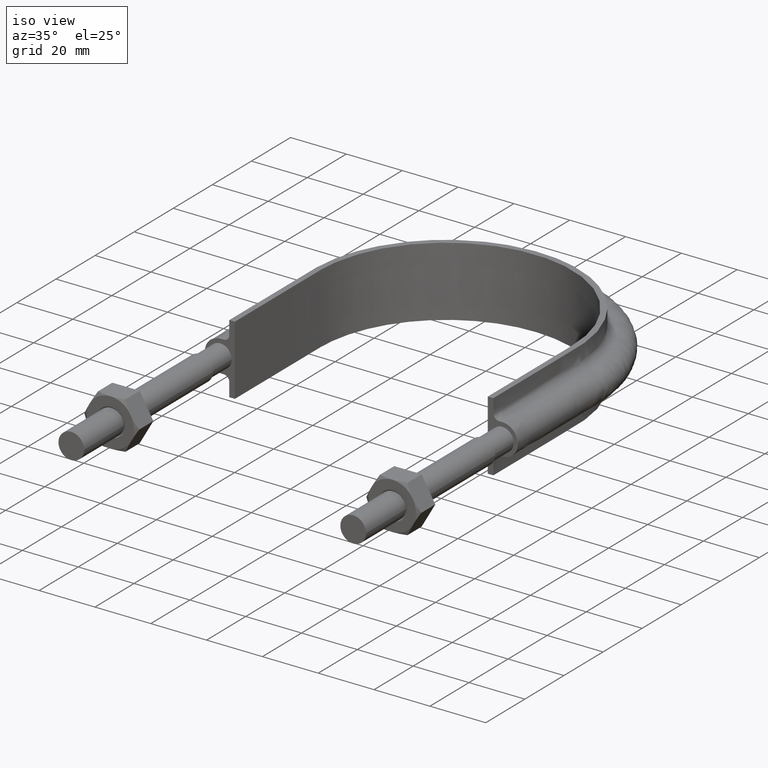
[diagram: clean part render]
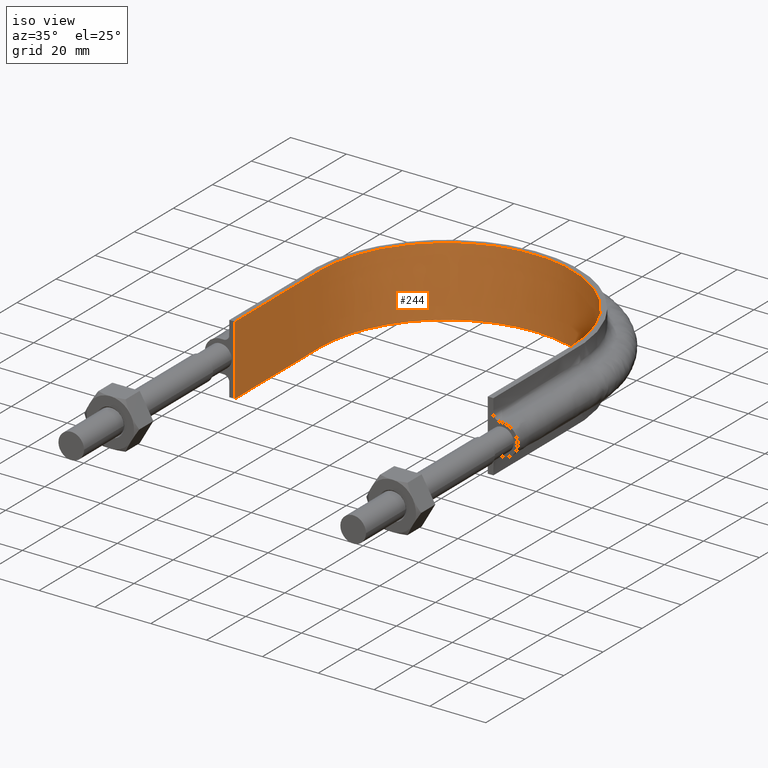
[diagram: tour spotlight — one face highlighted and labeled with its STEP entity id]
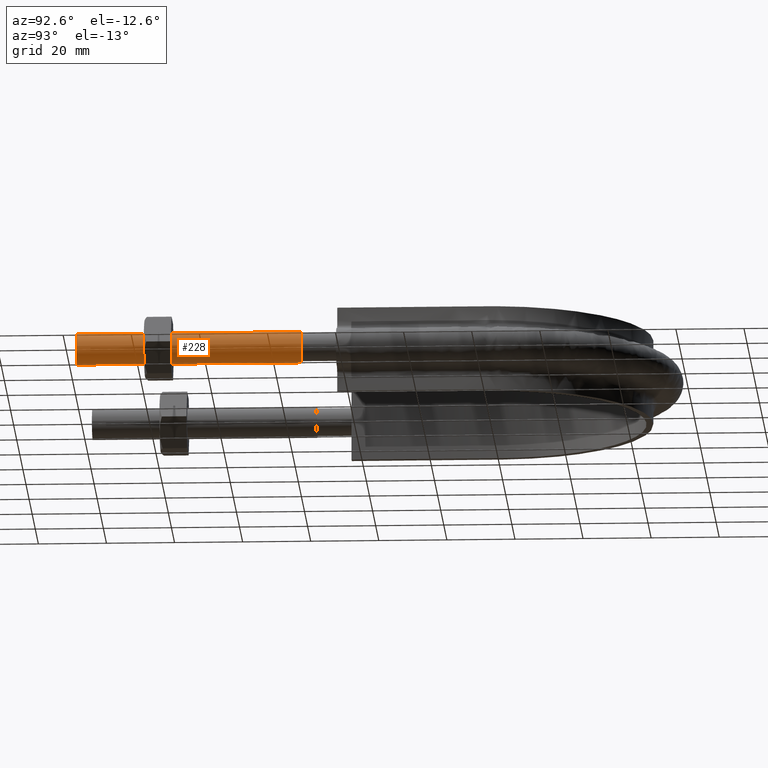
[diagram: tour spotlight — one face highlighted and labeled with its STEP entity id]
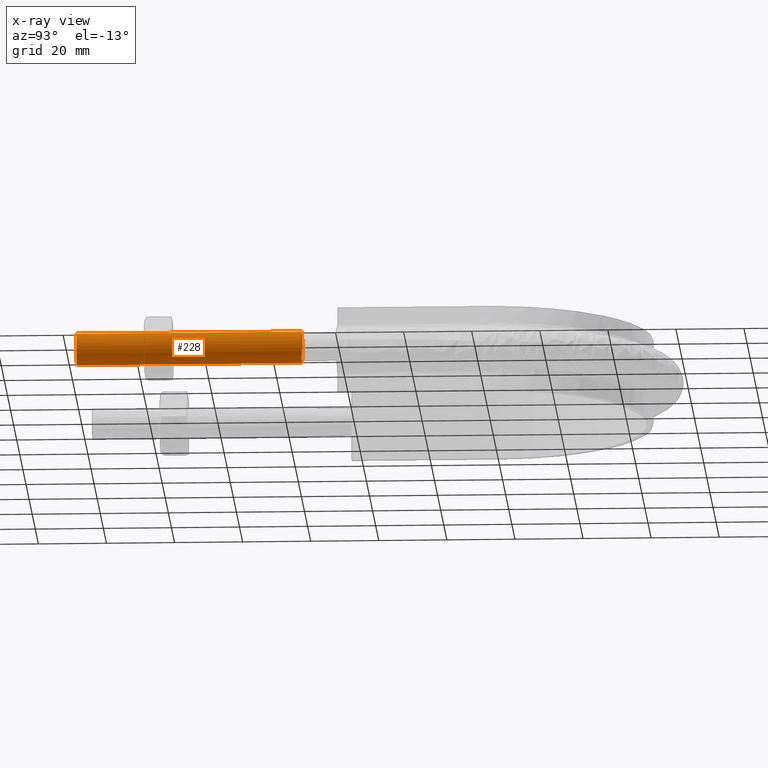
[diagram: x-ray of the same camera — body ghosted, this tour face saturated]
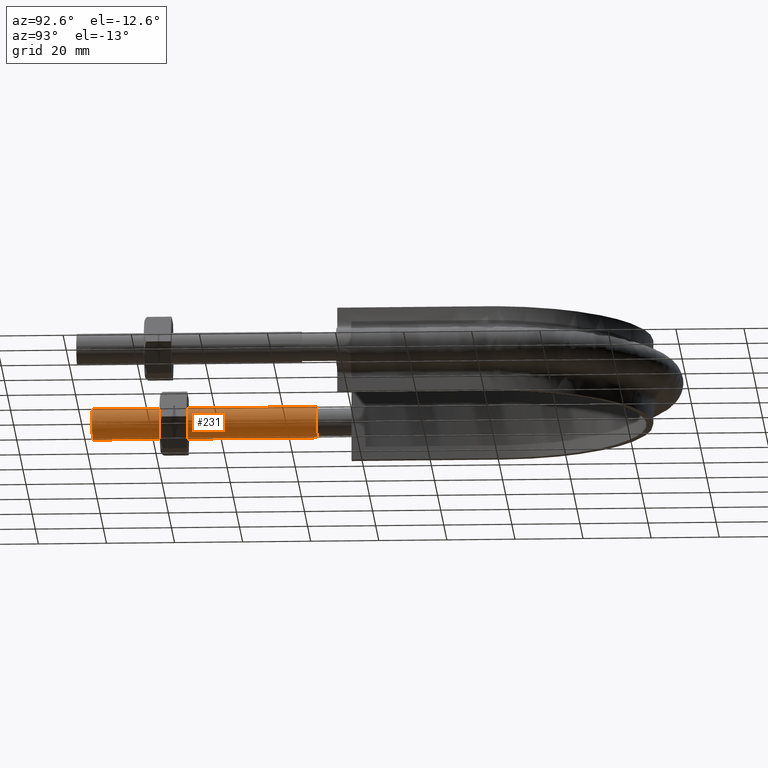
[diagram: tour spotlight — one face highlighted and labeled with its STEP entity id]
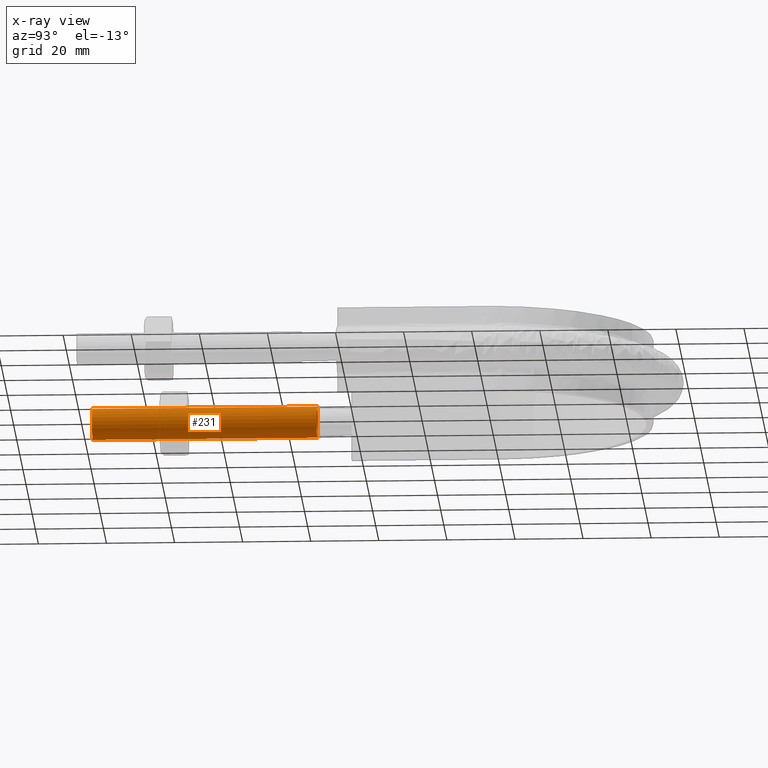
[diagram: x-ray of the same camera — body ghosted, this tour face saturated]
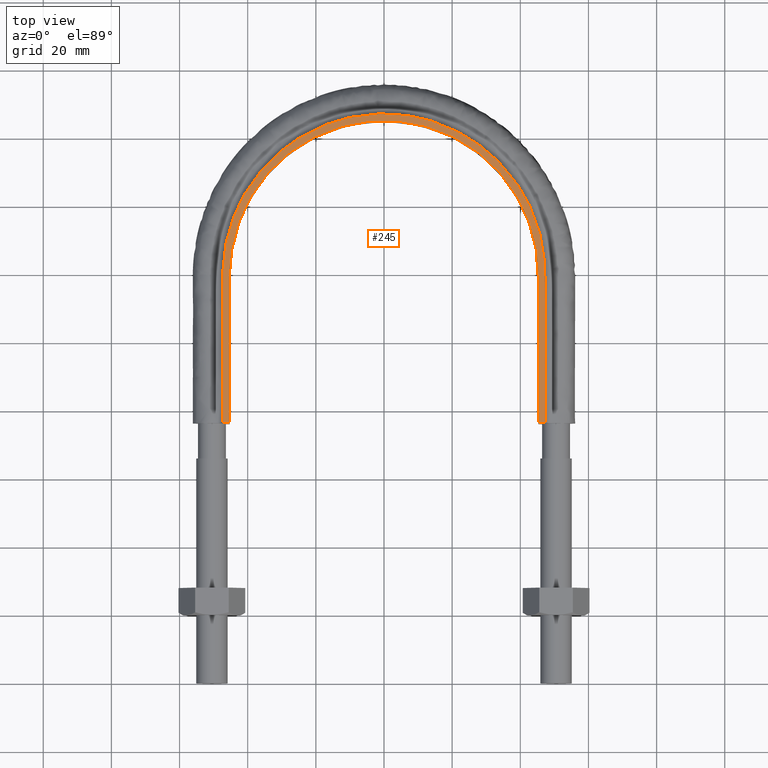
[diagram: tour spotlight — one face highlighted and labeled with its STEP entity id]
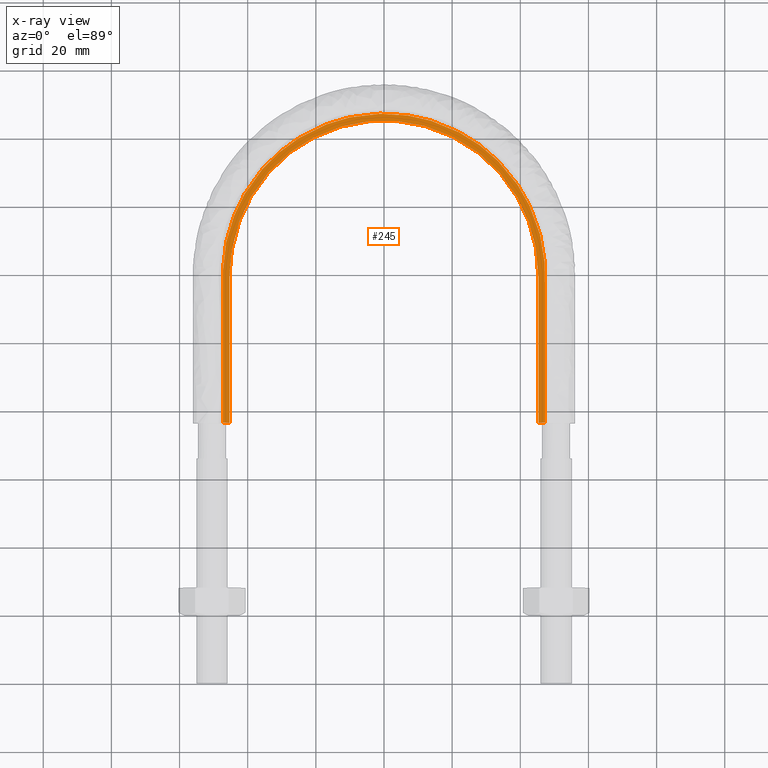
[diagram: x-ray of the same camera — body ghosted, this tour face saturated]
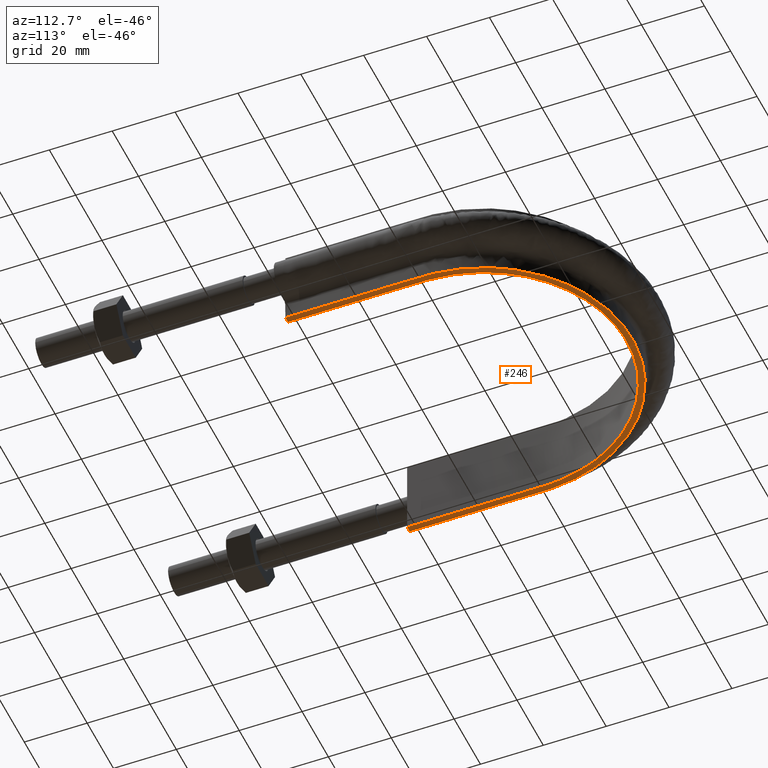
[diagram: tour spotlight — one face highlighted and labeled with its STEP entity id]
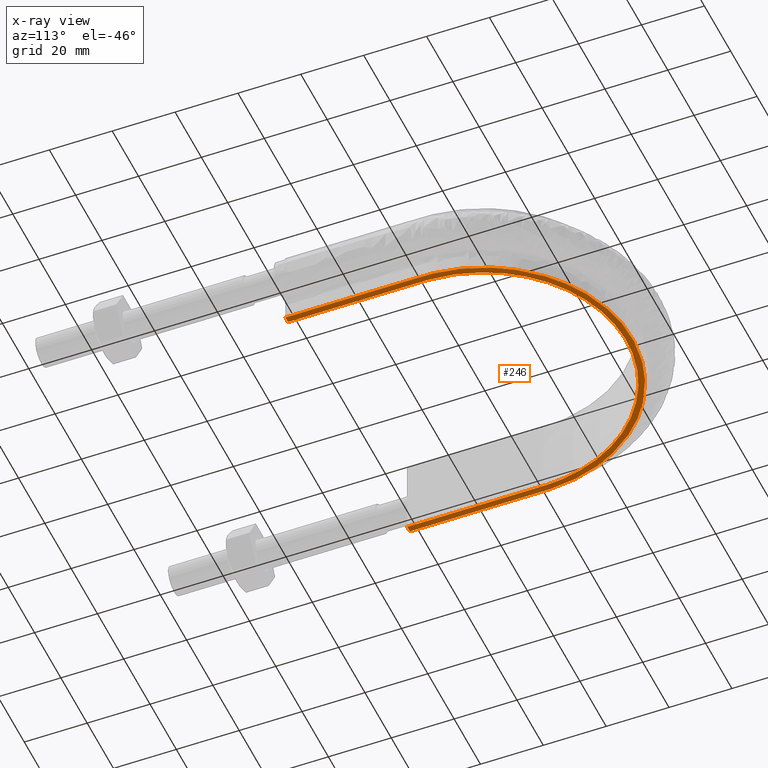
[diagram: x-ray of the same camera — body ghosted, this tour face saturated]
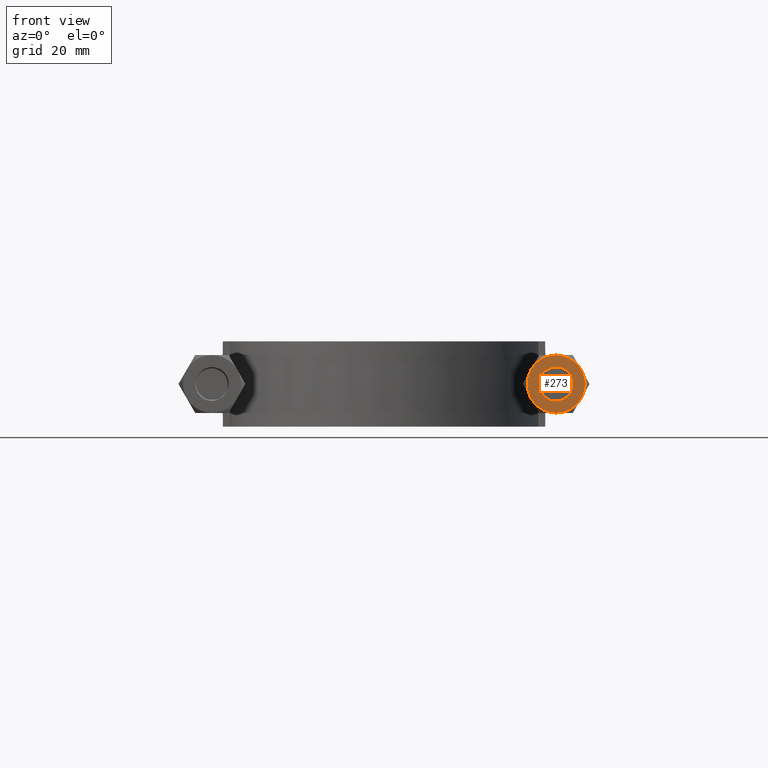
[diagram: tour spotlight — one face highlighted and labeled with its STEP entity id]
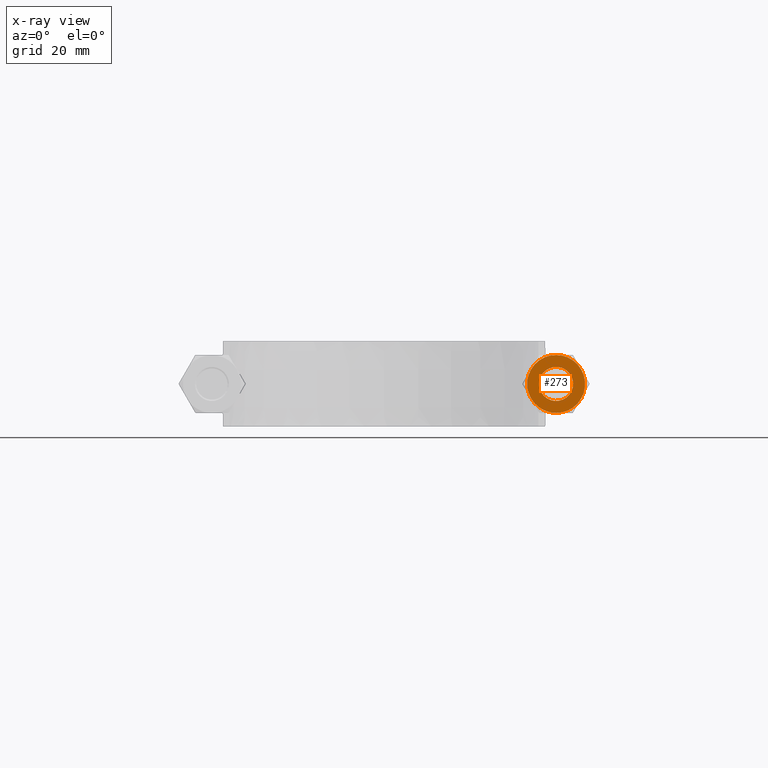
[diagram: x-ray of the same camera — body ghosted, this tour face saturated]
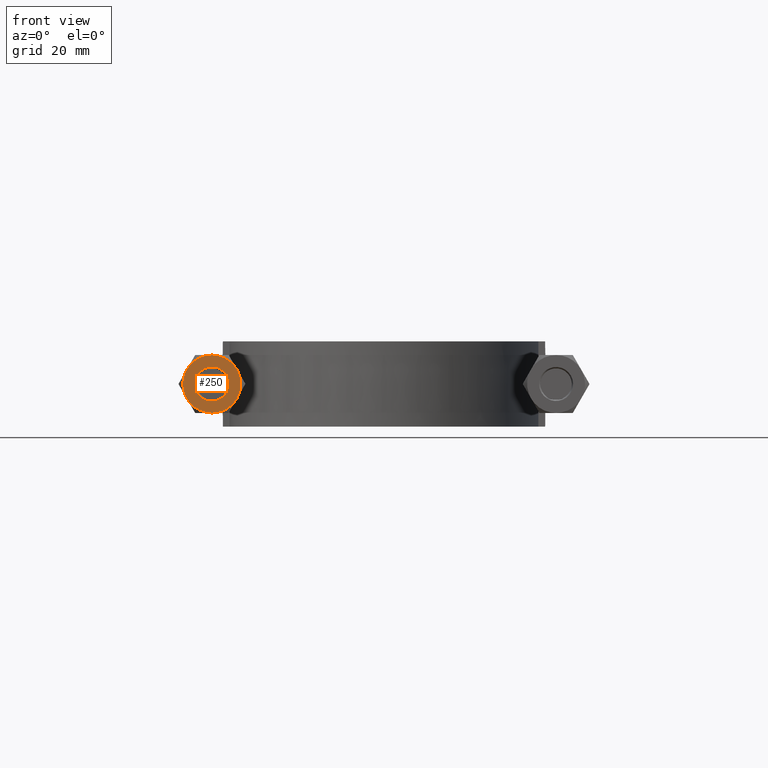
[diagram: tour spotlight — one face highlighted and labeled with its STEP entity id]
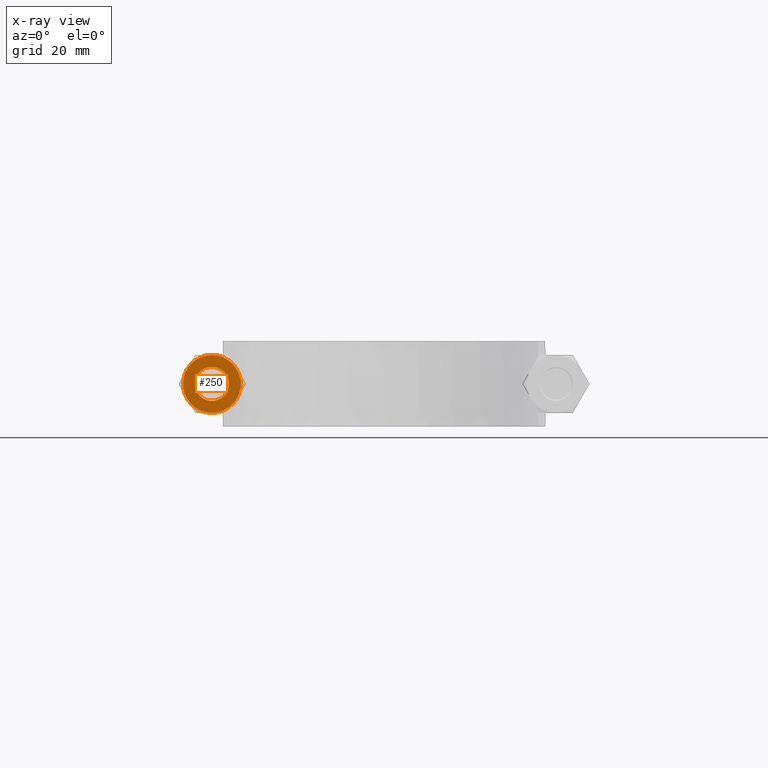
[diagram: x-ray of the same camera — body ghosted, this tour face saturated]
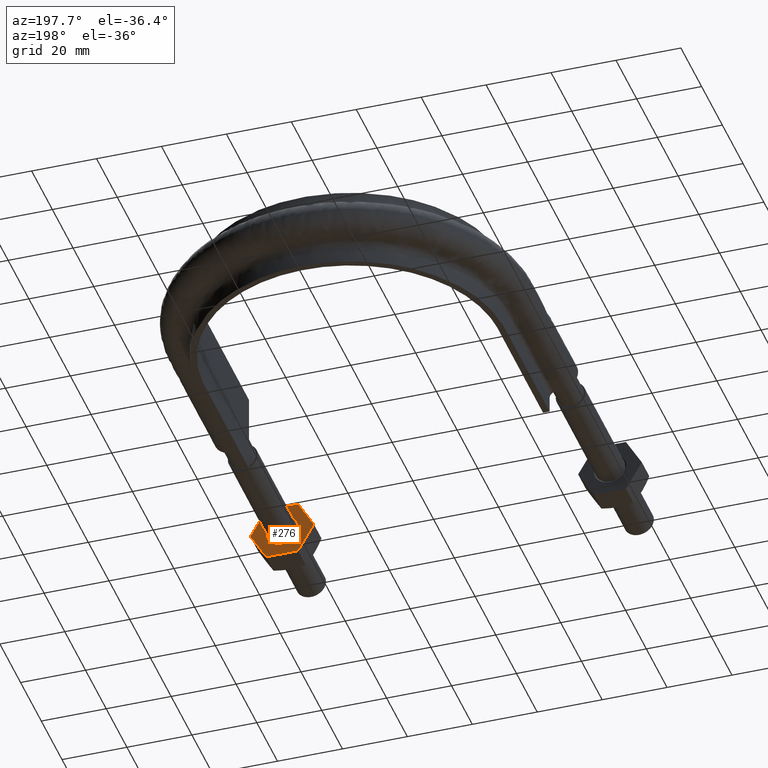
[diagram: tour spotlight — one face highlighted and labeled with its STEP entity id]
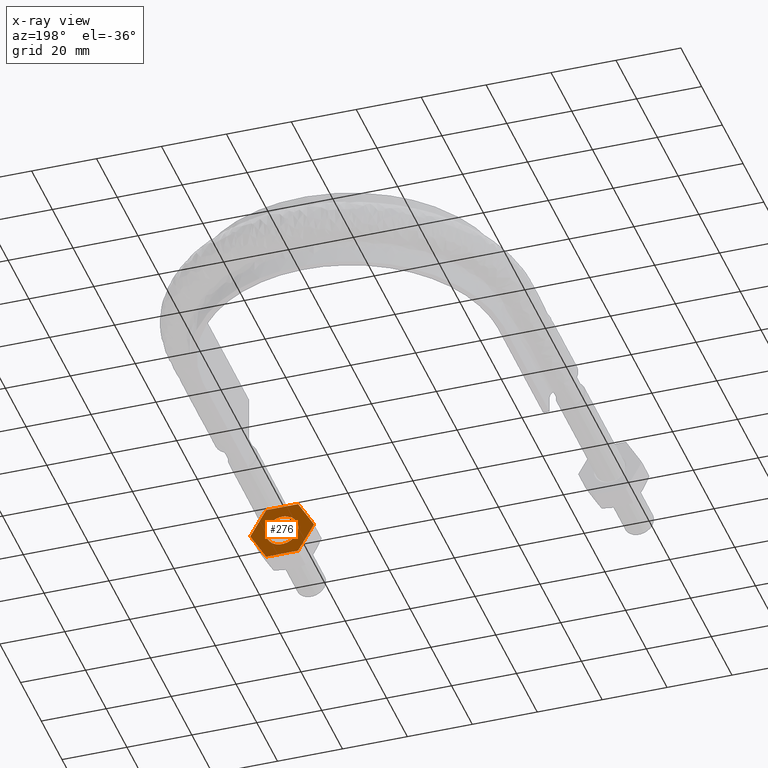
[diagram: x-ray of the same camera — body ghosted, this tour face saturated]
A machine part: a face-by-face anatomy tour. The part has 76 B-rep faces; the first image is the clean iso view, then the 8 largest visible faces are spotlighted one at a time (largest first), each with its STEP entity span.

Face 1 — iso view, entity #244. In plain terms, the highlighted face is a SurfaceOfExtrusion surface.
Definition (entity closure, byte-faithful):
#244 = ADVANCED_FACE( '', ( #355 ), #356, .T. );
#355 = FACE_OUTER_BOUND( '', #686, .T. );
#356 = SURFACE_OF_LINEAR_EXTRUSION( '', #687, #688 );
#686 = EDGE_LOOP( '', ( #1604, #1605, #1606, #1607 ) );
#687 = B_SPLINE_CURVE_WITH_KNOTS( '', 3, ( #1608, #1609, #1610, #1611, #1612, #1613, #1614, #1615, #1616, #1617, #1618, #1619, #1620, #1621, #1622, #1623 ), .UNSPECIFIED., .F., .F., ( 4, 3, 1, 1, 1, 1, 1, 1, 3, 4 ), ( -8.93133047210300, -8.00000000000000, -7.00000000000000, -6.00000000000000, -5.00000000000000, -4.00000000000000, -3.00000000000000, -2.00000000000000, -1.00000000000000, -0.0686695278969956 ), .UNSPECIFIED. );
#688 = VECTOR( '', #1624, 1000.00000000000 );
#1604 = ORIENTED_EDGE( '', *, *, #2026, .T. );
#1605 = ORIENTED_EDGE( '', *, *, #2035, .T. );
#1606 = ORIENTED_EDGE( '', *, *, #2032, .F. );
#1607 = ORIENTED_EDGE( '', *, *, #2036, .T. );
#1608 = CARTESIAN_POINT( '', ( 45.3000000000000, 76.3000000000000, 12.5000100000910 ) );
#1609 = CARTESIAN_POINT( '', ( 45.3000000000000, 90.7666666666667, 12.5000100000910 ) );
#1610 = CARTESIAN_POINT( '', ( 45.3000000000000, 105.233333333333, 12.5000100000910 ) );
#1611 = CARTESIAN_POINT( '', ( 45.3000000000000, 119.700000000000, 12.5000100000910 ) );
#1612 = CARTESIAN_POINT( '', ( 45.3000000000000, 126.461794206864, 12.5000100000910 ) );
#1613 = CARTESIAN_POINT( '', ( 42.2071641315033, 140.032157601825, 12.5000100000910 ) );
#1614 = CARTESIAN_POINT( '', ( 29.2082638356160, 156.324357375469, 12.5000100000910 ) );
#1615 = CARTESIAN_POINT( '', ( 10.4243086712368, 165.372209831110, 12.5000100000910 ) );
#1616 = CARTESIAN_POINT( '', ( -10.4243086712367, 165.372209831110, 12.5000100000910 ) );
#1617 = CARTESIAN_POINT( '', ( -29.2082638356159, 156.324357375469, 12.5000100000910 ) );
#1618 = CARTESIAN_POINT( '', ( -42.2071641315033, 140.032157601825, 12.5000100000910 ) );
#1619 = CARTESIAN_POINT( '', ( -45.3000000000000, 126.461794206864, 12.5000100000910 ) );
#1620 = CARTESIAN_POINT( '', ( -45.3000000000000, 119.700000000000, 12.5000100000910 ) );
#1621 = CARTESIAN_POINT( '', ( -45.3000000000000, 105.233333333333, 12.5000100000910 ) );
#1622 = CARTESIAN_POINT( '', ( -45.3000000000000, 90.7666666666667, 12.5000100000910 ) );
#1623 = CARTESIAN_POINT( '', ( -45.3000000000000, 76.3000000000000, 12.5000100000910 ) );
#1624 = DIRECTION( '', ( 0.000000000000000, 0.000000000000000, -1.00000000000000 ) );
#2026 = EDGE_CURVE( '', #2199, #2200, #2201, .T. );
#2032 = EDGE_CURVE( '', #2209, #2212, #2213, .T. );
#2035 = EDGE_CURVE( '', #2200, #2212, #2217, .F. );
#2036 = EDGE_CURVE( '', #2209, #2199, #2218, .T. );
#2199 = VERTEX_POINT( '', #2500 );
#2200 = VERTEX_POINT( '', #2501 );
#2201 = LINE( '', #2502, #2503 );
#2209 = VERTEX_POINT( '', #2552 );
#2212 = VERTEX_POINT( '', #2556 );
#2213 = LINE( '', #2557, #2558 );
#2217 = B_SPLINE_CURVE_WITH_KNOTS( '', 3, ( #2593, #2594, #2595, #2596, #2597, #2598, #2599, #2600, #2601, #2602, #2603, #2604, #2605, #2606, #2607, #2608 ), .UNSPECIFIED., .F., .F., ( 4, 3, 1, 1, 1, 1, 1, 1, 3, 4 ), ( -8.93133047210300, -8.00000000000000, -7.00000000000000, -6.00000000000000, -5.00000000000000, -4.00000000000000, -3.00000000000000, -2.00000000000000, -1.00000000000000, -0.0686695278969956 ), .UNSPECIFIED. );
#2218 = B_SPLINE_CURVE_WITH_KNOTS( '', 3, ( #2609, #2610, #2611, #2612, #2613, #2614, #2615, #2616, #2617, #2618, #2619, #2620, #2621, #2622, #2623, #2624, #2625, #2626, #2627, #2628, #2629, #2630, #2631, #2632, #2633, #2634, #2635, #2636, #2637, #2638, #2639, #2640, #2641, #2642, #2643, #2644, #2645, #2646, #2647, #2648, #2649, #2650, #2651, #2652, #2653, #2654, #2655, #2656, #2657, #2658, #2659, #2660, #2661, #2662, #2663, #2664, #2665, #2666, #2667, #2668, #2669, #2670, #2671, #2672, #2673, #2674, #2675, #2676, #2677, #2678, #2679, #2680, #2681, #2682, #2683, #2684, #2685, #2686, #2687, #2688, #2689, #2690, #2691, #2692 ), .UNSPECIFIED., .F., .F., ( 4, 1, 2, 2, 2, 2, 2, 2, 2, 2, 2, 2, 2, 2, 2, 2, 2, 2, 2, 2, 2, 2, 2, 2, 2, 2, 2, 2, 2, 2, 2, 2, 2, 2, 2, 2, 2, 2, 2, 2, 2, 1, 4 ), ( 2.77555756156289E-017, 0.0287543779946535, 0.0431315669919802, 0.0440301413043132, 0.0449287156166461, 0.0467258642413120, 0.0503201614906439, 0.0575087559893076, 0.0611030532386394, 0.0629002018633053, 0.0646973504879712, 0.0718859449866348, 0.0754802422359666, 0.0790745394852984, 0.0862631339839620, 0.0898574312332938, 0.0916545798579598, 0.0934517284826257, 0.100640322981289, 0.107828917479953, 0.111423214729285, 0.115017511978617, 0.122206106477281, 0.124003255101946, 0.125800403726612, 0.129394700975944, 0.136583295474608, 0.138380444099274, 0.140177592723940, 0.143771889973272, 0.150960484471935, 0.154554781721267, 0.158149078970599, 0.165337673469263, 0.168931970718595, 0.170729119343260, 0.172526267967926, 0.179714862466590, 0.183309159715922, 0.185106308340588, 0.186903456965254, 0.201280645962581, 0.230035023957237 ), .UNSPECIFIED. );
#2500 = CARTESIAN_POINT( '', ( -45.3000000000000, 76.3000000000000, 12.5000000000000 ) );
#2501 = CARTESIAN_POINT( '', ( -45.3000000000000, 76.3000000000000, -12.5000000000000 ) );
#2502 = CARTESIAN_POINT( '', ( -45.3000000000000, 76.3000000000000, 12.5000100000910 ) );
#2503 = VECTOR( '', #3129, 1000.00000000000 );
#2552 = CARTESIAN_POINT( '', ( 45.3000000000000, 76.3000000000000, 12.5000000000000 ) );
#2556 = CARTESIAN_POINT( '', ( 45.3000000000000, 76.3000000000000, -12.5000000000000 ) );
#2557 = CARTESIAN_POINT( '', ( 45.3000000000000, 76.3000000000000, 12.5000100000910 ) );
#2558 = VECTOR( '', #3133, 1000.00000000000 );
#2593 = CARTESIAN_POINT( '', ( 45.3000000000000, 76.3000000000000, -12.5000000000000 ) );
#2594 = CARTESIAN_POINT( '', ( 45.3000000000000, 90.7666666666667, -12.5000000000000 ) );
#2595 = CARTESIAN_POINT( '', ( 45.3000000000000, 105.233333333333, -12.5000000000000 ) );
#2596 = CARTESIAN_POINT( '', ( 45.3000000000000, 119.700000000000, -12.5000000000000 ) );
#2597 = CARTESIAN_POINT( '', ( 45.3000000000000, 126.461794206864, -12.5000000000000 ) );
#2598 = CARTESIAN_POINT( '', ( 42.2071641315033, 140.032157601825, -12.5000000000000 ) );
#2599 = CARTESIAN_POINT( '', ( 29.2082638356160, 156.324357375469, -12.5000000000000 ) );
#2600 = CARTESIAN_POINT( '', ( 10.4243086712368, 165.372209831110, -12.5000000000000 ) );
#2601 = CARTESIAN_POINT( '', ( -10.4243086712367, 165.372209831110, -12.5000000000000 ) );
#2602 = CARTESIAN_POINT( '', ( -29.2082638356159, 156.324357375469, -12.5000000000000 ) );
#2603 = CARTESIAN_POINT( '', ( -42.2071641315033, 140.032157601825, -12.5000000000000 ) );
#2604 = CARTESIAN_POINT( '', ( -45.3000000000000, 126.461794206864, -12.5000000000000 ) );
#2605 = CARTESIAN_POINT( '', ( -45.3000000000000, 119.700000000000, -12.5000000000000 ) );
#2606 = CARTESIAN_POINT( '', ( -45.3000000000000, 105.233333333333, -12.5000000000000 ) );
#2607 = CARTESIAN_POINT( '', ( -45.3000000000000, 90.7666666666667, -12.5000000000000 ) );
#2608 = CARTESIAN_POINT( '', ( -45.3000000000000, 76.3000000000000, -12.5000000000000 ) );
#2609 = CARTESIAN_POINT( '', ( 45.3000000000000, 76.3000000000000, 12.5000000000000 ) );
#2610 = CARTESIAN_POINT( '', ( 45.3000000000000, 85.8848205646283, 12.5000000000000 ) );
#2611 = CARTESIAN_POINT( '', ( 45.3000000000000, 100.262051411571, 12.5000000000000 ) );
#2612 = CARTESIAN_POINT( '', ( 45.3000000000000, 114.639282258513, 12.5000000000000 ) );
#2613 = CARTESIAN_POINT( '', ( 45.3000000000000, 119.731218183472, 12.5000000000000 ) );
#2614 = CARTESIAN_POINT( '', ( 45.2997760120250, 120.030743285675, 12.5000000000000 ) );
#2615 = CARTESIAN_POINT( '', ( 45.2912777717044, 120.629774066281, 12.5000000000000 ) );
#2616 = CARTESIAN_POINT( '', ( 45.2840050595567, 120.929282161215, 12.5000000000000 ) );
#2617 = CARTESIAN_POINT( '', ( 45.2531480099003, 121.827784636791, 12.5000000000000 ) );
#2618 = CARTESIAN_POINT( '', ( 45.2204957104834, 122.427200024520, 12.5000000000000 ) );
#2619 = CARTESIAN_POINT( '', ( 45.0866957945141, 124.222494949273, 12.5000000000000 ) );
#2620 = CARTESIAN_POINT( '', ( 44.9504291017170, 125.407906322016, 12.5000000000000 ) );
#2621 = CARTESIAN_POINT( '', ( 44.4061177465217, 128.931168904230, 12.5000000000000 ) );
#2622 = CARTESIAN_POINT( '', ( 43.8636822485659, 131.236321194624, 12.5000000000000 ) );
#2623 = CARTESIAN_POINT( '', ( 42.7815683609983, 134.628729902663, 12.5000000000000 ) );
#2624 = CARTESIAN_POINT( '', ( 42.3758385758422, 135.748577639201, 12.5000000000000 ) );
#2625 = CARTESIAN_POINT( '', ( 41.6971261299260, 137.411288741198, 12.5000000000000 ) );
#2626 = CARTESIAN_POINT( '', ( 41.4587485176159, 137.963522487295, 12.5000000000000 ) );
#2627 = CARTESIAN_POINT( '', ( 40.9623939009447, 139.052686028662, 12.5000000000000 ) );
#2628 = CARTESIAN_POINT( '', ( 40.7040140940421, 139.590633634307, 12.5000000000000 ) );
#2629 = CARTESIAN_POINT( '', ( 39.3618284958926, 142.247672872113, 12.5000000000000 ) );
#2630 = CARTESIAN_POINT( '', ( 38.1287732829047, 144.269715209024, 12.5000000000000 ) );
#2631 = CARTESIAN_POINT( '', ( 36.0483927303404, 147.152702706861, 12.5000000000000 ) );
#2632 = CARTESIAN_POINT( '', ( 35.3162279376426, 148.088530904417, 12.5000000000000 ) );
#2633 = CARTESIAN_POINT( '', ( 33.7729613787721, 149.908858607226, 12.5000000000000 ) );
#2634 = CARTESIAN_POINT( '', ( 32.9584983694077, 150.796352407073, 12.5000000000000 ) );
#2635 = CARTESIAN_POINT( '', ( 30.4343658146002, 153.337344556213, 12.5000000000000 ) );
#2636 = CARTESIAN_POINT( '', ( 28.6360692622384, 154.881493975360, 12.5000000000000 ) );
#2637 = CARTESIAN_POINT( '', ( 25.7668653719940, 156.974964438366, 12.5000000000000 ) );
#2638 = CARTESIAN_POINT( '', ( 24.7819445161318, 157.635801019642, 12.5000000000000 ) );
#2639 = CARTESIAN_POINT( '', ( 23.2616146962018, 158.571356100425, 12.5000000000000 ) );
#2640 = CARTESIAN_POINT( '', ( 22.7476691870374, 158.873910471946, 12.5000000000000 ) );
#2641 = CARTESIAN_POINT( '', ( 21.7052773821730, 159.460213200769, 12.5000000000000 ) );
#2642 = CARTESIAN_POINT( '', ( 21.1756556167050, 159.744537298346, 12.5000000000000 ) );
#2643 = CARTESIAN_POINT( '', ( 18.5103111801553, 161.108501344270, 12.5000000000000 ) );
#2644 = CARTESIAN_POINT( '', ( 16.3185331092018, 162.020394560135, 12.5000000000000 ) );
#2645 = CARTESIAN_POINT( '', ( 11.8189661583871, 163.494646423884, 12.5000000000000 ) );
#2646 = CARTESIAN_POINT( '', ( 9.51076198777594, 164.055753822214, 12.5000000000000 ) );
#2647 = CARTESIAN_POINT( '', ( 5.95662532797835, 164.620734661634, 12.5000000000000 ) );
#2648 = CARTESIAN_POINT( '', ( 4.76788785050929, 164.761147485507, 12.5000000000000 ) );
#2649 = CARTESIAN_POINT( '', ( 2.39647070391224, 164.947851083060, 12.5000000000000 ) );
#2650 = CARTESIAN_POINT( '', ( 1.21153117527832, 164.994499013257, 12.5000000000000 ) );
#2651 = CARTESIAN_POINT( '', ( -2.34101805316278, 164.996625356462, 12.5000000000000 ) );
#2652 = CARTESIAN_POINT( '', ( -4.70637779815031, 164.815464639074, 12.5000000000000 ) );
#2653 = CARTESIAN_POINT( '', ( -7.65915858277255, 164.351020241084, 12.5000000000000 ) );
#2654 = CARTESIAN_POINT( '', ( -8.25083455194689, 164.245862246466, 12.5000000000000 ) );
#2655 = CARTESIAN_POINT( '', ( -9.42653190172420, 164.012409776832, 12.5000000000000 ) );
#2656 = CARTESIAN_POINT( '', ( -10.0101476162839, 163.884250803394, 12.5000000000000 ) );
#2657 = CARTESIAN_POINT( '', ( -11.7484468334345, 163.465883377835, 12.5000000000000 ) );
#2658 = CARTESIAN_POINT( '', ( -12.8906527223971, 163.141974327520, 12.5000000000000 ) );
#2659 = CARTESIAN_POINT( '', ( -16.2689101217010, 162.039631660257, 12.5000000000000 ) );
#2660 = CARTESIAN_POINT( '', ( -18.4569925447984, 161.131639060066, 12.5000000000000 ) );
#2661 = CARTESIAN_POINT( '', ( -21.1113012403401, 159.778432115201, 12.5000000000000 ) );
#2662 = CARTESIAN_POINT( '', ( -21.6380918925235, 159.496795189040, 12.5000000000000 ) );
#2663 = CARTESIAN_POINT( '', ( -22.6833837807202, 158.911132577781, 12.5000000000000 ) );
#2664 = CARTESIAN_POINT( '', ( -23.2017061819434, 158.607128404409, 12.5000000000000 ) );
#2665 = CARTESIAN_POINT( '', ( -24.7303471350014, 157.669564342870, 12.5000000000000 ) );
#2666 = CARTESIAN_POINT( '', ( -25.7191011998733, 157.007938274698, 12.5000000000000 ) );
#2667 = CARTESIAN_POINT( '', ( -28.5955069273409, 154.914712609780, 12.5000000000000 ) );
#2668 = CARTESIAN_POINT( '', ( -30.3928386158801, 153.374206663575, 12.5000000000000 ) );
#2669 = CARTESIAN_POINT( '', ( -32.9098802473357, 150.847665641424, 12.5000000000000 ) );
#2670 = CARTESIAN_POINT( '', ( -33.7201063858693, 149.968144324297, 12.5000000000000 ) );
#2671 = CARTESIAN_POINT( '', ( -35.2745676507394, 148.140548074671, 12.5000000000000 ) );
#2672 = CARTESIAN_POINT( '', ( -36.0108033379543, 147.202093103808, 12.5000000000000 ) );
#2673 = CARTESIAN_POINT( '', ( -38.0999731742672, 144.314831254988, 12.5000000000000 ) );
#2674 = CARTESIAN_POINT( '', ( -39.3343184899538, 142.294697861214, 12.5000000000000 ) );
#2675 = CARTESIAN_POINT( '', ( -40.9440306770638, 139.119061107137, 12.5000000000000 ) );
#2676 = CARTESIAN_POINT( '', ( -41.4398476877742, 138.036003764877, 12.5000000000000 ) );
#2677 = CARTESIAN_POINT( '', ( -42.1215319712500, 136.374102391935, 12.5000000000000 ) );
#2678 = CARTESIAN_POINT( '', ( -42.3385970417914, 135.813283805220, 12.5000000000000 ) );
#2679 = CARTESIAN_POINT( '', ( -42.7483267135285, 134.689073533850, 12.5000000000000 ) );
#2680 = CARTESIAN_POINT( '', ( -42.9414928116361, 134.124536114339, 12.5000000000000 ) );
#2681 = CARTESIAN_POINT( '', ( -43.8499727665168, 131.289925270555, 12.5000000000000 ) );
#2682 = CARTESIAN_POINT( '', ( -44.3947073189256, 128.984386713932, 12.5000000000000 ) );
#2683 = CARTESIAN_POINT( '', ( -44.9423619636433, 125.470058132087, 12.5000000000000 ) );
#2684 = CARTESIAN_POINT( '', ( -45.0797192826280, 124.289218942135, 12.5000000000000 ) );
#2685 = CARTESIAN_POINT( '', ( -45.2157289936545, 122.503401000382, 12.5000000000000 ) );
#2686 = CARTESIAN_POINT( '', ( -45.2493799141445, 121.905563911382, 12.5000000000000 ) );
#2687 = CARTESIAN_POINT( '', ( -45.2926573150339, 120.705446197623, 12.5000000000000 ) );
#2688 = CARTESIAN_POINT( '', ( -45.3000000000000, 120.105377557368, 12.5000000000000 ) );
#2689 = CARTESIAN_POINT( '', ( -45.3000000000000, 114.704714570843, 12.5000000000000 ) );
#2690 = CARTESIAN_POINT( '', ( -45.3000000000000, 100.302946606777, 12.5000000000000 ) );
#2691 = CARTESIAN_POINT( '', ( -45.3000000000000, 85.9011786427107, 12.5000000000000 ) );
#2692 = CARTESIAN_POINT( '', ( -45.3000000000000, 76.3000000000001, 12.5000000000000 ) );
#3129 = DIRECTION( '', ( 0.000000000000000, 0.000000000000000, -1.00000000000000 ) );
#3133 = DIRECTION( '', ( 0.000000000000000, 0.000000000000000, -1.00000000000000 ) );

Face 2 — auxiliary view, entity #228. An x-ray twin of the same camera follows (body ghosted, this face saturated) — the face is partly hidden behind the body. In plain terms, the highlighted cylindrical surface (bore or boss wall) has radius 4.6 mm, axis along (0, 1, 0).
Definition (entity closure, byte-faithful):
#228 = ADVANCED_FACE( '', ( #317, #318 ), #319, .T. );
#317 = FACE_OUTER_BOUND( '', #648, .T. );
#318 = FACE_OUTER_BOUND( '', #649, .T. );
#319 = CYLINDRICAL_SURFACE( '', #650, 4.60000000000000 );
#648 = EDGE_LOOP( '', ( #1520 ) );
#649 = EDGE_LOOP( '', ( #1521 ) );
#650 = AXIS2_PLACEMENT_3D( '', #1522, #1523, #1524 );
#1520 = ORIENTED_EDGE( '', *, *, #2021, .T. );
#1521 = ORIENTED_EDGE( '', *, *, #2022, .F. );
#1522 = CARTESIAN_POINT( '', ( 50.5000000000000, 66.0000000000000, 4.09630825353585E-015 ) );
#1523 = DIRECTION( '', ( 2.44921270764475E-016, 1.00000000000000, 6.12303176911189E-017 ) );
#1524 = DIRECTION( '', ( 1.00000000000000, -2.44921270764475E-016, -7.49830360911069E-033 ) );
#2021 = EDGE_CURVE( '', #2189, #2189, #2190, .T. );
#2022 = EDGE_CURVE( '', #2191, #2191, #2192, .T. );
#2189 = VERTEX_POINT( '', #2481 );
#2190 = CIRCLE( '', #2482, 4.60000000000000 );
#2191 = VERTEX_POINT( '', #2483 );
#2192 = CIRCLE( '', #2484, 4.60000000000000 );
#2481 = CARTESIAN_POINT( '', ( 55.1000000000000, 66.0000000000000, 4.09630825353585E-015 ) );
#2482 = AXIS2_PLACEMENT_3D( '', #3117, #3118, #3119 );
#2483 = CARTESIAN_POINT( '', ( 55.1000000000000, -1.34951620191226E-014, 5.51072859220066E-017 ) );
#2484 = AXIS2_PLACEMENT_3D( '', #3120, #3121, #3122 );
#3117 = CARTESIAN_POINT( '', ( 50.5000000000000, 66.0000000000000, 4.09630825353585E-015 ) );
#3118 = DIRECTION( '', ( -2.44921270764476E-016, -1.00000000000000, -6.12303176911189E-017 ) );
#3119 = DIRECTION( '', ( 1.00000000000000, -2.44921270764476E-016, -7.49830360911070E-033 ) );
#3120 = CARTESIAN_POINT( '', ( 50.5000000000000, -1.23685241736060E-014, 5.51072859220066E-017 ) );
#3121 = DIRECTION( '', ( -2.44921270764476E-016, -1.00000000000000, -6.12303176911189E-017 ) );
#3122 = DIRECTION( '', ( 1.00000000000000, -2.44921270764476E-016, -7.49830360911070E-033 ) );

Face 3 — auxiliary view, entity #231. An x-ray twin of the same camera follows (body ghosted, this face saturated) — the face is partly hidden behind the body. In plain terms, the highlighted cylindrical surface (bore or boss wall) has radius 4.6 mm, axis along (0, 1, 0).
Definition (entity closure, byte-faithful):
#231 = ADVANCED_FACE( '', ( #325, #326 ), #327, .T. );
#325 = FACE_OUTER_BOUND( '', #656, .T. );
#326 = FACE_OUTER_BOUND( '', #657, .T. );
#327 = CYLINDRICAL_SURFACE( '', #658, 4.60000000000000 );
#656 = EDGE_LOOP( '', ( #1534 ) );
#657 = EDGE_LOOP( '', ( #1535 ) );
#658 = AXIS2_PLACEMENT_3D( '', #1536, #1537, #1538 );
#1534 = ORIENTED_EDGE( '', *, *, #2023, .T. );
#1535 = ORIENTED_EDGE( '', *, *, #2024, .F. );
#1536 = CARTESIAN_POINT( '', ( -50.5000000000000, 66.0000000000000, 4.09630825353585E-015 ) );
#1537 = DIRECTION( '', ( 2.44921270764475E-016, 1.00000000000000, 6.12303176911189E-017 ) );
#1538 = DIRECTION( '', ( 1.00000000000000, -2.44921270764475E-016, -7.49830360911069E-033 ) );
#2023 = EDGE_CURVE( '', #2193, #2193, #2194, .T. );
#2024 = EDGE_CURVE( '', #2195, #2195, #2196, .T. );
#2193 = VERTEX_POINT( '', #2485 );
#2194 = CIRCLE( '', #2486, 4.60000000000000 );
#2195 = VERTEX_POINT( '', #2487 );
#2196 = CIRCLE( '', #2488, 4.60000000000000 );
#2485 = CARTESIAN_POINT( '', ( -45.9000000000000, 66.0000000000000, 4.09630825353585E-015 ) );
#2486 = AXIS2_PLACEMENT_3D( '', #3123, #3124, #3125 );
#2487 = CARTESIAN_POINT( '', ( -45.9000000000000, 1.12418863280894E-014, 5.51072859220073E-017 ) );
#2488 = AXIS2_PLACEMENT_3D( '', #3126, #3127, #3128 );
#3123 = CARTESIAN_POINT( '', ( -50.5000000000000, 66.0000000000000, 4.09630825353585E-015 ) );
#3124 = DIRECTION( '', ( -2.44921270764475E-016, -1.00000000000000, -6.12303176911189E-017 ) );
#3125 = DIRECTION( '', ( 1.00000000000000, -2.44921270764475E-016, -1.01150562509412E-032 ) );
#3126 = CARTESIAN_POINT( '', ( -50.5000000000000, 1.23685241736060E-014, 5.51072859220074E-017 ) );
#3127 = DIRECTION( '', ( -2.44921270764475E-016, -1.00000000000000, -6.12303176911189E-017 ) );
#3128 = DIRECTION( '', ( 1.00000000000000, -2.44921270764475E-016, -1.01150562509412E-032 ) );

Face 4 — top view, entity #245. An x-ray twin of the same camera follows (body ghosted, this face saturated) — the face is partly hidden behind the body. In plain terms, the highlighted planar face has unit normal (0, 0, 1).
Definition (entity closure, byte-faithful):
#245 = ADVANCED_FACE( '', ( #357 ), #358, .T. );
#357 = FACE_OUTER_BOUND( '', #689, .T. );
#358 = PLANE( '', #690 );
#689 = EDGE_LOOP( '', ( #1625, #1626, #1627, #1628 ) );
#690 = AXIS2_PLACEMENT_3D( '', #1629, #1630, #1631 );
#1625 = ORIENTED_EDGE( '', *, *, #2027, .T. );
#1626 = ORIENTED_EDGE( '', *, *, #2036, .F. );
#1627 = ORIENTED_EDGE( '', *, *, #2031, .T. );
#1628 = ORIENTED_EDGE( '', *, *, #2037, .F. );
#1629 = CARTESIAN_POINT( '', ( 60.0000000000000, 186.300000000000, 12.5000000000000 ) );
#1630 = DIRECTION( '', ( 0.000000000000000, 0.000000000000000, 1.00000000000000 ) );
#1631 = DIRECTION( '', ( 1.22460635382238E-016, 1.00000000000000, 0.000000000000000 ) );
#2027 = EDGE_CURVE( '', #2202, #2199, #2203, .T. );
#2031 = EDGE_CURVE( '', #2209, #2210, #2211, .T. );
#2036 = EDGE_CURVE( '', #2209, #2199, #2218, .T. );
#2037 = EDGE_CURVE( '', #2202, #2210, #2219, .T. );
#2199 = VERTEX_POINT( '', #2500 );
#2202 = VERTEX_POINT( '', #2504 );
#2203 = LINE( '', #2505, #2506 );
#2209 = VERTEX_POINT( '', #2552 );
#2210 = VERTEX_POINT( '', #2553 );
#2211 = LINE( '', #2554, #2555 );
#2218 = B_SPLINE_CURVE_WITH_KNOTS( '', 3, ( #2609, #2610, #2611, #2612, #2613, #2614, #2615, #2616, #2617, #2618, #2619, #2620, #2621, #2622, #2623, #2624, #2625, #2626, #2627, #2628, #2629, #2630, #2631, #2632, #2633, #2634, #2635, #2636, #2637, #2638, #2639, #2640, #2641, #2642, #2643, #2644, #2645, #2646, #2647, #2648, #2649, #2650, #2651, #2652, #2653, #2654, #2655, #2656, #2657, #2658, #2659, #2660, #2661, #2662, #2663, #2664, #2665, #2666, #2667, #2668, #2669, #2670, #2671, #2672, #2673, #2674, #2675, #2676, #2677, #2678, #2679, #2680, #2681, #2682, #2683, #2684, #2685, #2686, #2687, #2688, #2689, #2690, #2691, #2692 ), .UNSPECIFIED., .F., .F., ( 4, 1, 2, 2, 2, 2, 2, 2, 2, 2, 2, 2, 2, 2, 2, 2, 2, 2, 2, 2, 2, 2, 2, 2, 2, 2, 2, 2, 2, 2, 2, 2, 2, 2, 2, 2, 2, 2, 2, 2, 2, 1, 4 ), ( 2.77555756156289E-017, 0.0287543779946535, 0.0431315669919802, 0.0440301413043132, 0.0449287156166461, 0.0467258642413120, 0.0503201614906439, 0.0575087559893076, 0.0611030532386394, 0.0629002018633053, 0.0646973504879712, 0.0718859449866348, 0.0754802422359666, 0.0790745394852984, 0.0862631339839620, 0.0898574312332938, 0.0916545798579598, 0.0934517284826257, 0.100640322981289, 0.107828917479953, 0.111423214729285, 0.115017511978617, 0.122206106477281, 0.124003255101946, 0.125800403726612, 0.129394700975944, 0.136583295474608, 0.138380444099274, 0.140177592723940, 0.143771889973272, 0.150960484471935, 0.154554781721267, 0.158149078970599, 0.165337673469263, 0.168931970718595, 0.170729119343260, 0.172526267967926, 0.179714862466590, 0.183309159715922, 0.185106308340588, 0.186903456965254, 0.201280645962581, 0.230035023957237 ), .UNSPECIFIED. );
#2219 = B_SPLINE_CURVE_WITH_KNOTS( '', 3, ( #2693, #2694, #2695, #2696, #2697, #2698, #2699, #2700, #2701, #2702, #2703, #2704, #2705, #2706, #2707, #2708 ), .UNSPECIFIED., .F., .F., ( 4, 3, 1, 1, 1, 1, 1, 1, 3, 4 ), ( 0.0686695278969958, 1.00000000000000, 2.00000000000000, 3.00000000000000, 4.00000000000000, 5.00000000000000, 6.00000000000000, 7.00000000000000, 8.00000000000000, 8.93133047210300 ), .UNSPECIFIED. );
#2500 = CARTESIAN_POINT( '', ( -45.3000000000000, 76.3000000000000, 12.5000000000000 ) );
#2504 = CARTESIAN_POINT( '', ( -47.3000000000000, 76.3000000000000, 12.5000000000000 ) );
#2505 = CARTESIAN_POINT( '', ( -60.0000000000000, 76.3000000000000, 12.5000000000000 ) );
#2506 = VECTOR( '', #3130, 1000.00000000000 );
#2552 = CARTESIAN_POINT( '', ( 45.3000000000000, 76.3000000000000, 12.5000000000000 ) );
#2553 = CARTESIAN_POINT( '', ( 47.3000000000000, 76.3000000000000, 12.5000000000000 ) );
#2554 = CARTESIAN_POINT( '', ( -60.0000000000000, 76.3000000000000, 12.5000000000000 ) );
#2555 = VECTOR( '', #3132, 1000.00000000000 );
#2609 = CARTESIAN_POINT( '', ( 45.3000000000000, 76.3000000000000, 12.5000000000000 ) );
#2610 = CARTESIAN_POINT( '', ( 45.3000000000000, 85.8848205646283, 12.5000000000000 ) );
#2611 = CARTESIAN_POINT( '', ( 45.3000000000000, 100.262051411571, 12.5000000000000 ) );
#2612 = CARTESIAN_POINT( '', ( 45.3000000000000, 114.639282258513, 12.5000000000000 ) );
#2613 = CARTESIAN_POINT( '', ( 45.3000000000000, 119.731218183472, 12.5000000000000 ) );
#2614 = CARTESIAN_POINT( '', ( 45.2997760120250, 120.030743285675, 12.5000000000000 ) );
#2615 = CARTESIAN_POINT( '', ( 45.2912777717044, 120.629774066281, 12.5000000000000 ) );
#2616 = CARTESIAN_POINT( '', ( 45.2840050595567, 120.929282161215, 12.5000000000000 ) );
#2617 = CARTESIAN_POINT( '', ( 45.2531480099003, 121.827784636791, 12.5000000000000 ) );
#2618 = CARTESIAN_POINT( '', ( 45.2204957104834, 122.427200024520, 12.5000000000000 ) );
#2619 = CARTESIAN_POINT( '', ( 45.0866957945141, 124.222494949273, 12.5000000000000 ) );
#2620 = CARTESIAN_POINT( '', ( 44.9504291017170, 125.407906322016, 12.5000000000000 ) );
#2621 = CARTESIAN_POINT( '', ( 44.4061177465217, 128.931168904230, 12.5000000000000 ) );
#2622 = CARTESIAN_POINT( '', ( 43.8636822485659, 131.236321194624, 12.5000000000000 ) );
#2623 = CARTESIAN_POINT( '', ( 42.7815683609983, 134.628729902663, 12.5000000000000 ) );
#2624 = CARTESIAN_POINT( '', ( 42.3758385758422, 135.748577639201, 12.5000000000000 ) );
#2625 = CARTESIAN_POINT( '', ( 41.6971261299260, 137.411288741198, 12.5000000000000 ) );
#2626 = CARTESIAN_POINT( '', ( 41.4587485176159, 137.963522487295, 12.5000000000000 ) );
#2627 = CARTESIAN_POINT( '', ( 40.9623939009447, 139.052686028662, 12.5000000000000 ) );
#2628 = CARTESIAN_POINT( '', ( 40.7040140940421, 139.590633634307, 12.5000000000000 ) );
#2629 = CARTESIAN_POINT( '', ( 39.3618284958926, 142.247672872113, 12.5000000000000 ) );
#2630 = CARTESIAN_POINT( '', ( 38.1287732829047, 144.269715209024, 12.5000000000000 ) );
#2631 = CARTESIAN_POINT( '', ( 36.0483927303404, 147.152702706861, 12.5000000000000 ) );
#2632 = CARTESIAN_POINT( '', ( 35.3162279376426, 148.088530904417, 12.5000000000000 ) );
#2633 = CARTESIAN_POINT( '', ( 33.7729613787721, 149.908858607226, 12.5000000000000 ) );
#2634 = CARTESIAN_POINT( '', ( 32.9584983694077, 150.796352407073, 12.5000000000000 ) );
#2635 = CARTESIAN_POINT( '', ( 30.4343658146002, 153.337344556213, 12.5000000000000 ) );
#2636 = CARTESIAN_POINT( '', ( 28.6360692622384, 154.881493975360, 12.5000000000000 ) );
#2637 = CARTESIAN_POINT( '', ( 25.7668653719940, 156.974964438366, 12.5000000000000 ) );
#2638 = CARTESIAN_POINT( '', ( 24.7819445161318, 157.635801019642, 12.5000000000000 ) );
#2639 = CARTESIAN_POINT( '', ( 23.2616146962018, 158.571356100425, 12.5000000000000 ) );
#2640 = CARTESIAN_POINT( '', ( 22.7476691870374, 158.873910471946, 12.5000000000000 ) );
#2641 = CARTESIAN_POINT( '', ( 21.7052773821730, 159.460213200769, 12.5000000000000 ) );
#2642 = CARTESIAN_POINT( '', ( 21.1756556167050, 159.744537298346, 12.5000000000000 ) );
#2643 = CARTESIAN_POINT( '', ( 18.5103111801553, 161.108501344270, 12.5000000000000 ) );
#2644 = CARTESIAN_POINT( '', ( 16.3185331092018, 162.020394560135, 12.5000000000000 ) );
#2645 = CARTESIAN_POINT( '', ( 11.8189661583871, 163.494646423884, 12.5000000000000 ) );
#2646 = CARTESIAN_POINT( '', ( 9.51076198777594, 164.055753822214, 12.5000000000000 ) );
#2647 = CARTESIAN_POINT( '', ( 5.95662532797835, 164.620734661634, 12.5000000000000 ) );
#2648 = CARTESIAN_POINT( '', ( 4.76788785050929, 164.761147485507, 12.5000000000000 ) );
#2649 = CARTESIAN_POINT( '', ( 2.39647070391224, 164.947851083060, 12.5000000000000 ) );
#2650 = CARTESIAN_POINT( '', ( 1.21153117527832, 164.994499013257, 12.5000000000000 ) );
#2651 = CARTESIAN_POINT( '', ( -2.34101805316278, 164.996625356462, 12.5000000000000 ) );
#2652 = CARTESIAN_POINT( '', ( -4.70637779815031, 164.815464639074, 12.5000000000000 ) );
#2653 = CARTESIAN_POINT( '', ( -7.65915858277255, 164.351020241084, 12.5000000000000 ) );
#2654 = CARTESIAN_POINT( '', ( -8.25083455194689, 164.245862246466, 12.5000000000000 ) );
#2655 = CARTESIAN_POINT( '', ( -9.42653190172420, 164.012409776832, 12.5000000000000 ) );
#2656 = CARTESIAN_POINT( '', ( -10.0101476162839, 163.884250803394, 12.5000000000000 ) );
#2657 = CARTESIAN_POINT( '', ( -11.7484468334345, 163.465883377835, 12.5000000000000 ) );
#2658 = CARTESIAN_POINT( '', ( -12.8906527223971, 163.141974327520, 12.5000000000000 ) );
#2659 = CARTESIAN_POINT( '', ( -16.2689101217010, 162.039631660257, 12.5000000000000 ) );
#2660 = CARTESIAN_POINT( '', ( -18.4569925447984, 161.131639060066, 12.5000000000000 ) );
#2661 = CARTESIAN_POINT( '', ( -21.1113012403401, 159.778432115201, 12.5000000000000 ) );
#2662 = CARTESIAN_POINT( '', ( -21.6380918925235, 159.496795189040, 12.5000000000000 ) );
#2663 = CARTESIAN_POINT( '', ( -22.6833837807202, 158.911132577781, 12.5000000000000 ) );
#2664 = CARTESIAN_POINT( '', ( -23.2017061819434, 158.607128404409, 12.5000000000000 ) );
#2665 = CARTESIAN_POINT( '', ( -24.7303471350014, 157.669564342870, 12.5000000000000 ) );
#2666 = CARTESIAN_POINT( '', ( -25.7191011998733, 157.007938274698, 12.5000000000000 ) );
#2667 = CARTESIAN_POINT( '', ( -28.5955069273409, 154.914712609780, 12.5000000000000 ) );
#2668 = CARTESIAN_POINT( '', ( -30.3928386158801, 153.374206663575, 12.5000000000000 ) );
#2669 = CARTESIAN_POINT( '', ( -32.9098802473357, 150.847665641424, 12.5000000000000 ) );
#2670 = CARTESIAN_POINT( '', ( -33.7201063858693, 149.968144324297, 12.5000000000000 ) );
#2671 = CARTESIAN_POINT( '', ( -35.2745676507394, 148.140548074671, 12.5000000000000 ) );
#2672 = CARTESIAN_POINT( '', ( -36.0108033379543, 147.202093103808, 12.5000000000000 ) );
#2673 = CARTESIAN_POINT( '', ( -38.0999731742672, 144.314831254988, 12.5000000000000 ) );
#2674 = CARTESIAN_POINT( '', ( -39.3343184899538, 142.294697861214, 12.5000000000000 ) );
#2675 = CARTESIAN_POINT( '', ( -40.9440306770638, 139.119061107137, 12.5000000000000 ) );
#2676 = CARTESIAN_POINT( '', ( -41.4398476877742, 138.036003764877, 12.5000000000000 ) );
#2677 = CARTESIAN_POINT( '', ( -42.1215319712500, 136.374102391935, 12.5000000000000 ) );
#2678 = CARTESIAN_POINT( '', ( -42.3385970417914, 135.813283805220, 12.5000000000000 ) );
#2679 = CARTESIAN_POINT( '', ( -42.7483267135285, 134.689073533850, 12.5000000000000 ) );
#2680 = CARTESIAN_POINT( '', ( -42.9414928116361, 134.124536114339, 12.5000000000000 ) );
#2681 = CARTESIAN_POINT( '', ( -43.8499727665168, 131.289925270555, 12.5000000000000 ) );
#2682 = CARTESIAN_POINT( '', ( -44.3947073189256, 128.984386713932, 12.5000000000000 ) );
#2683 = CARTESIAN_POINT( '', ( -44.9423619636433, 125.470058132087, 12.5000000000000 ) );
#2684 = CARTESIAN_POINT( '', ( -45.0797192826280, 124.289218942135, 12.5000000000000 ) );
#2685 = CARTESIAN_POINT( '', ( -45.2157289936545, 122.503401000382, 12.5000000000000 ) );
#2686 = CARTESIAN_POINT( '', ( -45.2493799141445, 121.905563911382, 12.5000000000000 ) );
#2687 = CARTESIAN_POINT( '', ( -45.2926573150339, 120.705446197623, 12.5000000000000 ) );
#2688 = CARTESIAN_POINT( '', ( -45.3000000000000, 120.105377557368, 12.5000000000000 ) );
#2689 = CARTESIAN_POINT( '', ( -45.3000000000000, 114.704714570843, 12.5000000000000 ) );
#2690 = CARTESIAN_POINT( '', ( -45.3000000000000, 100.302946606777, 12.5000000000000 ) );
#2691 = CARTESIAN_POINT( '', ( -45.3000000000000, 85.9011786427107, 12.5000000000000 ) );
#2692 = CARTESIAN_POINT( '', ( -45.3000000000000, 76.3000000000001, 12.5000000000000 ) );
#2693 = CARTESIAN_POINT( '', ( -47.3000000000000, 76.3000000000000, 12.5000000000000 ) );
#2694 = CARTESIAN_POINT( '', ( -47.3000000000000, 90.7666666666667, 12.5000000000000 ) );
#2695 = CARTESIAN_POINT( '', ( -47.3000000000000, 105.233333333333, 12.5000000000000 ) );
#2696 = CARTESIAN_POINT( '', ( -47.3000000000000, 119.700000000000, 12.5000000000000 ) );
#2697 = CARTESIAN_POINT( '', ( -47.3000000000000, 126.766118839385, 12.5000000000000 ) );
#2698 = CARTESIAN_POINT( '', ( -44.0706150865366, 140.927141121989, 12.5000000000000 ) );
#2699 = CARTESIAN_POINT( '', ( -30.4978119078285, 157.942032975526, 12.5000000000000 ) );
#2700 = CARTESIAN_POINT( '', ( -10.8845430496578, 167.388501700335, 12.5000000000000 ) );
#2701 = CARTESIAN_POINT( '', ( 10.8845430496579, 167.388501700335, 12.5000000000000 ) );
#2702 = CARTESIAN_POINT( '', ( 30.4978119078286, 157.942032975526, 12.5000000000000 ) );
#2703 = CARTESIAN_POINT( '', ( 44.0706150865366, 140.927141121989, 12.5000000000000 ) );
#2704 = CARTESIAN_POINT( '', ( 47.3000000000000, 126.766118839385, 12.5000000000000 ) );
#2705 = CARTESIAN_POINT( '', ( 47.3000000000000, 119.700000000000, 12.5000000000000 ) );
#2706 = CARTESIAN_POINT( '', ( 47.3000000000000, 105.233333333333, 12.5000000000000 ) );
#2707 = CARTESIAN_POINT( '', ( 47.3000000000000, 90.7666666666667, 12.5000000000000 ) );
#2708 = CARTESIAN_POINT( '', ( 47.3000000000000, 76.3000000000000, 12.5000000000000 ) );
#3130 = DIRECTION( '', ( 1.00000000000000, -1.22460635382238E-016, 0.000000000000000 ) );
#3132 = DIRECTION( '', ( 1.00000000000000, -1.22460635382238E-016, 0.000000000000000 ) );

Face 5 — auxiliary view, entity #246. An x-ray twin of the same camera follows (body ghosted, this face saturated) — the face is partly hidden behind the body. In plain terms, the highlighted planar face has unit normal (0, 0, 1).
Definition (entity closure, byte-faithful):
#246 = ADVANCED_FACE( '', ( #359 ), #360, .F. );
#359 = FACE_OUTER_BOUND( '', #691, .T. );
#360 = PLANE( '', #692 );
#691 = EDGE_LOOP( '', ( #1632, #1633, #1634, #1635 ) );
#692 = AXIS2_PLACEMENT_3D( '', #1636, #1637, #1638 );
#1632 = ORIENTED_EDGE( '', *, *, #2035, .F. );
#1633 = ORIENTED_EDGE( '', *, *, #2029, .F. );
#1634 = ORIENTED_EDGE( '', *, *, #2038, .F. );
#1635 = ORIENTED_EDGE( '', *, *, #2033, .F. );
#1636 = CARTESIAN_POINT( '', ( 60.0000000000000, 186.300000000000, -12.5000000000000 ) );
#1637 = DIRECTION( '', ( 0.000000000000000, 0.000000000000000, 1.00000000000000 ) );
#1638 = DIRECTION( '', ( 1.22460635382238E-016, 1.00000000000000, 0.000000000000000 ) );
#2029 = EDGE_CURVE( '', #2204, #2200, #2206, .T. );
#2033 = EDGE_CURVE( '', #2212, #2214, #2215, .T. );
#2035 = EDGE_CURVE( '', #2200, #2212, #2217, .F. );
#2038 = EDGE_CURVE( '', #2214, #2204, #2220, .F. );
#2200 = VERTEX_POINT( '', #2501 );
#2204 = VERTEX_POINT( '', #2507 );
#2206 = LINE( '', #2539, #2540 );
#2212 = VERTEX_POINT( '', #2556 );
#2214 = VERTEX_POINT( '', #2559 );
#2215 = LINE( '', #2560, #2561 );
#2217 = B_SPLINE_CURVE_WITH_KNOTS( '', 3, ( #2593, #2594, #2595, #2596, #2597, #2598, #2599, #2600, #2601, #2602, #2603, #2604, #2605, #2606, #2607, #2608 ), .UNSPECIFIED., .F., .F., ( 4, 3, 1, 1, 1, 1, 1, 1, 3, 4 ), ( -8.93133047210300, -8.00000000000000, -7.00000000000000, -6.00000000000000, -5.00000000000000, -4.00000000000000, -3.00000000000000, -2.00000000000000, -1.00000000000000, -0.0686695278969956 ), .UNSPECIFIED. );
#2220 = B_SPLINE_CURVE_WITH_KNOTS( '', 3, ( #2709, #2710, #2711, #2712, #2713, #2714, #2715, #2716, #2717, #2718, #2719, #2720, #2721, #2722, #2723, #2724 ), .UNSPECIFIED., .F., .F., ( 4, 3, 1, 1, 1, 1, 1, 1, 3, 4 ), ( 0.0686695278969958, 1.00000000000000, 2.00000000000000, 3.00000000000000, 4.00000000000000, 5.00000000000000, 6.00000000000000, 7.00000000000000, 8.00000000000000, 8.93133047210300 ), .UNSPECIFIED. );
#2501 = CARTESIAN_POINT( '', ( -45.3000000000000, 76.3000000000000, -12.5000000000000 ) );
#2507 = CARTESIAN_POINT( '', ( -47.3000000000000, 76.3000000000000, -12.5000000000000 ) );
#2539 = CARTESIAN_POINT( '', ( -60.0000000000000, 76.3000000000000, -12.5000000000000 ) );
#2540 = VECTOR( '', #3131, 1000.00000000000 );
#2556 = CARTESIAN_POINT( '', ( 45.3000000000000, 76.3000000000000, -12.5000000000000 ) );
#2559 = CARTESIAN_POINT( '', ( 47.3000000000000, 76.3000000000000, -12.5000000000000 ) );
#2560 = CARTESIAN_POINT( '', ( -60.0000000000000, 76.3000000000000, -12.5000000000000 ) );
#2561 = VECTOR( '', #3134, 1000.00000000000 );
#2593 = CARTESIAN_POINT( '', ( 45.3000000000000, 76.3000000000000, -12.5000000000000 ) );
#2594 = CARTESIAN_POINT( '', ( 45.3000000000000, 90.7666666666667, -12.5000000000000 ) );
#2595 = CARTESIAN_POINT( '', ( 45.3000000000000, 105.233333333333, -12.5000000000000 ) );
#2596 = CARTESIAN_POINT( '', ( 45.3000000000000, 119.700000000000, -12.5000000000000 ) );
#2597 = CARTESIAN_POINT( '', ( 45.3000000000000, 126.461794206864, -12.5000000000000 ) );
#2598 = CARTESIAN_POINT( '', ( 42.2071641315033, 140.032157601825, -12.5000000000000 ) );
#2599 = CARTESIAN_POINT( '', ( 29.2082638356160, 156.324357375469, -12.5000000000000 ) );
#2600 = CARTESIAN_POINT( '', ( 10.4243086712368, 165.372209831110, -12.5000000000000 ) );
#2601 = CARTESIAN_POINT( '', ( -10.4243086712367, 165.372209831110, -12.5000000000000 ) );
#2602 = CARTESIAN_POINT( '', ( -29.2082638356159, 156.324357375469, -12.5000000000000 ) );
#2603 = CARTESIAN_POINT( '', ( -42.2071641315033, 140.032157601825, -12.5000000000000 ) );
#2604 = CARTESIAN_POINT( '', ( -45.3000000000000, 126.461794206864, -12.5000000000000 ) );
#2605 = CARTESIAN_POINT( '', ( -45.3000000000000, 119.700000000000, -12.5000000000000 ) );
#2606 = CARTESIAN_POINT( '', ( -45.3000000000000, 105.233333333333, -12.5000000000000 ) );
#2607 = CARTESIAN_POINT( '', ( -45.3000000000000, 90.7666666666667, -12.5000000000000 ) );
#2608 = CARTESIAN_POINT( '', ( -45.3000000000000, 76.3000000000000, -12.5000000000000 ) );
#2709 = CARTESIAN_POINT( '', ( -47.3000000000000, 76.3000000000000, -12.5000000000000 ) );
#2710 = CARTESIAN_POINT( '', ( -47.3000000000000, 90.7666666666667, -12.5000000000000 ) );
#2711 = CARTESIAN_POINT( '', ( -47.3000000000000, 105.233333333333, -12.5000000000000 ) );
#2712 = CARTESIAN_POINT( '', ( -47.3000000000000, 119.700000000000, -12.5000000000000 ) );
#2713 = CARTESIAN_POINT( '', ( -47.3000000000000, 126.766118839385, -12.5000000000000 ) );
#2714 = CARTESIAN_POINT( '', ( -44.0706150865365, 140.927141121989, -12.5000000000000 ) );
#2715 = CARTESIAN_POINT( '', ( -30.4978119078285, 157.942032975526, -12.5000000000000 ) );
#2716 = CARTESIAN_POINT( '', ( -10.8845430496578, 167.388501700335, -12.5000000000000 ) );
#2717 = CARTESIAN_POINT( '', ( 10.8845430496579, 167.388501700335, -12.5000000000000 ) );
#2718 = CARTESIAN_POINT( '', ( 30.4978119078286, 157.942032975526, -12.5000000000000 ) );
#2719 = CARTESIAN_POINT( '', ( 44.0706150865366, 140.927141121989, -12.5000000000000 ) );
#2720 = CARTESIAN_POINT( '', ( 47.3000000000000, 126.766118839385, -12.5000000000000 ) );
#2721 = CARTESIAN_POINT( '', ( 47.3000000000000, 119.700000000000, -12.5000000000000 ) );
#2722 = CARTESIAN_POINT( '', ( 47.3000000000000, 105.233333333333, -12.5000000000000 ) );
#2723 = CARTESIAN_POINT( '', ( 47.3000000000000, 90.7666666666667, -12.5000000000000 ) );
#2724 = CARTESIAN_POINT( '', ( 47.3000000000000, 76.3000000000000, -12.5000000000000 ) );
#3131 = DIRECTION( '', ( 1.00000000000000, -1.22460635382238E-016, 0.000000000000000 ) );
#3134 = DIRECTION( '', ( 1.00000000000000, -1.22460635382238E-016, 0.000000000000000 ) );

Face 6 — front view, entity #273. An x-ray twin of the same camera follows (body ghosted, this face saturated) — the face is partly hidden behind the body. In plain terms, the highlighted planar face has unit normal (0, 1, 0).
Definition (entity closure, byte-faithful):
#273 = ADVANCED_FACE( '', ( #419, #420 ), #421, .F. );
#419 = FACE_OUTER_BOUND( '', #1405, .T. );
#420 = FACE_BOUND( '', #1406, .T. );
#421 = PLANE( '', #1407 );
#1405 = EDGE_LOOP( '', ( #1825, #1826, #1827, #1828, #1829, #1830 ) );
#1406 = EDGE_LOOP( '', ( #1831 ) );
#1407 = AXIS2_PLACEMENT_3D( '', #1832, #1833, #1834 );
#1825 = ORIENTED_EDGE( '', *, *, #2095, .F. );
#1826 = ORIENTED_EDGE( '', *, *, #2096, .F. );
#1827 = ORIENTED_EDGE( '', *, *, #2097, .F. );
#1828 = ORIENTED_EDGE( '', *, *, #2098, .F. );
#1829 = ORIENTED_EDGE( '', *, *, #2093, .F. );
#1830 = ORIENTED_EDGE( '', *, *, #2099, .F. );
#1831 = ORIENTED_EDGE( '', *, *, #2100, .T. );
#1832 = CARTESIAN_POINT( '', ( 50.5000000000000, 20.0000000000000, 1.48980220521233E-015 ) );
#1833 = DIRECTION( '', ( 2.44921270764475E-016, 1.00000000000000, 6.12303176911188E-017 ) );
#1834 = DIRECTION( '', ( -0.866025403784439, 2.42723201254762E-016, -0.500000000000000 ) );
#2093 = EDGE_CURVE( '', #2310, #2312, #2313, .T. );
#2095 = EDGE_CURVE( '', #2315, #2316, #2317, .T. );
#2096 = EDGE_CURVE( '', #2318, #2315, #2319, .T. );
#2097 = EDGE_CURVE( '', #2320, #2318, #2321, .T. );
#2098 = EDGE_CURVE( '', #2312, #2320, #2322, .T. );
#2099 = EDGE_CURVE( '', #2316, #2310, #2323, .T. );
#2100 = EDGE_CURVE( '', #2324, #2324, #2325, .T. );
#2310 = VERTEX_POINT( '', #2900 );
#2312 = VERTEX_POINT( '', #2907 );
#2313 = CIRCLE( '', #2908, 8.50000000000000 );
#2315 = VERTEX_POINT( '', #2917 );
#2316 = VERTEX_POINT( '', #2918 );
#2317 = CIRCLE( '', #2919, 8.50000000000000 );
#2318 = VERTEX_POINT( '', #2920 );
#2319 = CIRCLE( '', #2921, 8.50000000000000 );
#2320 = VERTEX_POINT( '', #2922 );
#2321 = CIRCLE( '', #2923, 8.50000000000000 );
#2322 = CIRCLE( '', #2924, 8.50000000000000 );
#2323 = CIRCLE( '', #2925, 8.50000000000000 );
#2324 = VERTEX_POINT( '', #2926 );
#2325 = CIRCLE( '', #2927, 5.00000000000000 );
#2900 = CARTESIAN_POINT( '', ( 57.8612159321677, 20.0000000000000, 4.25000000000000 ) );
#2907 = CARTESIAN_POINT( '', ( 57.8612159321677, 20.0000000000000, -4.25000000000000 ) );
#2908 = AXIS2_PLACEMENT_3D( '', #3222, #3223, #3224 );
#2917 = CARTESIAN_POINT( '', ( 43.1387840678323, 20.0000000000000, 4.25000000000000 ) );
#2918 = CARTESIAN_POINT( '', ( 50.5000000000000, 20.0000000000000, 8.50000000000000 ) );
#2919 = AXIS2_PLACEMENT_3D( '', #3225, #3226, #3227 );
#2920 = CARTESIAN_POINT( '', ( 43.1387840678323, 20.0000000000000, -4.25000000000000 ) );
#2921 = AXIS2_PLACEMENT_3D( '', #3228, #3229, #3230 );
#2922 = CARTESIAN_POINT( '', ( 50.5000000000000, 20.0000000000000, -8.50000000000000 ) );
#2923 = AXIS2_PLACEMENT_3D( '', #3231, #3232, #3233 );
#2924 = AXIS2_PLACEMENT_3D( '', #3234, #3235, #3236 );
#2925 = AXIS2_PLACEMENT_3D( '', #3237, #3238, #3239 );
#2926 = CARTESIAN_POINT( '', ( 46.1698729810778, 20.0000000000000, -2.50000000000000 ) );
#2927 = AXIS2_PLACEMENT_3D( '', #3240, #3241, #3242 );
#3222 = CARTESIAN_POINT( '', ( 50.5000000000000, 20.0000000000000, 1.48980220521233E-015 ) );
#3223 = DIRECTION( '', ( 2.44921270764475E-016, 1.00000000000000, 6.12303176911188E-017 ) );
#3224 = DIRECTION( '', ( -0.866025403784439, 2.42723201254762E-016, -0.500000000000000 ) );
#3225 = CARTESIAN_POINT( '', ( 50.5000000000000, 20.0000000000000, 1.48980220521233E-015 ) );
#3226 = DIRECTION( '', ( 2.44921270764475E-016, 1.00000000000000, 6.12303176911188E-017 ) );
#3227 = DIRECTION( '', ( -0.866025403784439, 2.42723201254762E-016, -0.500000000000000 ) );
#3228 = CARTESIAN_POINT( '', ( 50.5000000000000, 20.0000000000000, 1.48980220521233E-015 ) );
#3229 = DIRECTION( '', ( 2.44921270764475E-016, 1.00000000000000, 6.12303176911188E-017 ) );
#3230 = DIRECTION( '', ( -0.866025403784439, 2.42723201254762E-016, -0.500000000000000 ) );
#3231 = CARTESIAN_POINT( '', ( 50.5000000000000, 20.0000000000000, 1.48980220521233E-015 ) );
#3232 = DIRECTION( '', ( 2.44921270764475E-016, 1.00000000000000, 6.12303176911188E-017 ) );
#3233 = DIRECTION( '', ( -0.866025403784439, 2.42723201254762E-016, -0.500000000000000 ) );
#3234 = CARTESIAN_POINT( '', ( 50.5000000000000, 20.0000000000000, 1.48980220521233E-015 ) );
#3235 = DIRECTION( '', ( 2.44921270764475E-016, 1.00000000000000, 6.12303176911188E-017 ) );
#3236 = DIRECTION( '', ( -0.866025403784439, 2.42723201254762E-016, -0.500000000000000 ) );
#3237 = CARTESIAN_POINT( '', ( 50.5000000000000, 20.0000000000000, 1.48980220521233E-015 ) );
#3238 = DIRECTION( '', ( 2.44921270764475E-016, 1.00000000000000, 6.12303176911188E-017 ) );
#3239 = DIRECTION( '', ( -0.866025403784439, 2.42723201254762E-016, -0.500000000000000 ) );
#3240 = CARTESIAN_POINT( '', ( 50.5000000000000, 20.0000000000000, 1.48980220521233E-015 ) );
#3241 = DIRECTION( '', ( 2.44921270764475E-016, 1.00000000000000, 6.12303176911188E-017 ) );
#3242 = DIRECTION( '', ( -0.866025403784439, 2.42723201254762E-016, -0.500000000000000 ) );

Face 7 — front view, entity #250. An x-ray twin of the same camera follows (body ghosted, this face saturated) — the face is partly hidden behind the body. In plain terms, the highlighted planar face has unit normal (0, 1, 0).
Definition (entity closure, byte-faithful):
#250 = ADVANCED_FACE( '', ( #368, #369 ), #370, .F. );
#368 = FACE_OUTER_BOUND( '', #1354, .T. );
#369 = FACE_BOUND( '', #1355, .T. );
#370 = PLANE( '', #1356 );
#1354 = EDGE_LOOP( '', ( #1652, #1653, #1654, #1655, #1656, #1657 ) );
#1355 = EDGE_LOOP( '', ( #1658 ) );
#1356 = AXIS2_PLACEMENT_3D( '', #1659, #1660, #1661 );
#1652 = ORIENTED_EDGE( '', *, *, #2043, .F. );
#1653 = ORIENTED_EDGE( '', *, *, #2044, .F. );
#1654 = ORIENTED_EDGE( '', *, *, #2045, .F. );
#1655 = ORIENTED_EDGE( '', *, *, #2046, .F. );
#1656 = ORIENTED_EDGE( '', *, *, #2041, .F. );
#1657 = ORIENTED_EDGE( '', *, *, #2047, .F. );
#1658 = ORIENTED_EDGE( '', *, *, #2048, .T. );
#1659 = CARTESIAN_POINT( '', ( -50.5000000000000, 20.0000000000000, 1.48980220521233E-015 ) );
#1660 = DIRECTION( '', ( 2.44921270764475E-016, 1.00000000000000, 6.12303176911188E-017 ) );
#1661 = DIRECTION( '', ( -0.866025403784439, 2.42723201254762E-016, -0.500000000000000 ) );
#2041 = EDGE_CURVE( '', #2224, #2226, #2227, .T. );
#2043 = EDGE_CURVE( '', #2229, #2230, #2231, .T. );
#2044 = EDGE_CURVE( '', #2232, #2229, #2233, .T. );
#2045 = EDGE_CURVE( '', #2234, #2232, #2235, .T. );
#2046 = EDGE_CURVE( '', #2226, #2234, #2236, .T. );
#2047 = EDGE_CURVE( '', #2230, #2224, #2237, .T. );
#2048 = EDGE_CURVE( '', #2238, #2238, #2239, .T. );
#2224 = VERTEX_POINT( '', #2728 );
#2226 = VERTEX_POINT( '', #2735 );
#2227 = CIRCLE( '', #2736, 8.50000000000000 );
#2229 = VERTEX_POINT( '', #2745 );
#2230 = VERTEX_POINT( '', #2746 );
#2231 = CIRCLE( '', #2747, 8.50000000000000 );
#2232 = VERTEX_POINT( '', #2748 );
#2233 = CIRCLE( '', #2749, 8.50000000000000 );
#2234 = VERTEX_POINT( '', #2750 );
#2235 = CIRCLE( '', #2751, 8.50000000000000 );
#2236 = CIRCLE( '', #2752, 8.50000000000000 );
#2237 = CIRCLE( '', #2753, 8.50000000000000 );
#2238 = VERTEX_POINT( '', #2754 );
#2239 = CIRCLE( '', #2755, 5.00000000000000 );
#2728 = CARTESIAN_POINT( '', ( -43.1387840678323, 20.0000000000000, 4.25000000000000 ) );
#2735 = CARTESIAN_POINT( '', ( -43.1387840678323, 20.0000000000000, -4.25000000000000 ) );
#2736 = AXIS2_PLACEMENT_3D( '', #3138, #3139, #3140 );
#2745 = CARTESIAN_POINT( '', ( -57.8612159321677, 20.0000000000000, 4.25000000000000 ) );
#2746 = CARTESIAN_POINT( '', ( -50.5000000000000, 20.0000000000000, 8.50000000000000 ) );
#2747 = AXIS2_PLACEMENT_3D( '', #3141, #3142, #3143 );
#2748 = CARTESIAN_POINT( '', ( -57.8612159321677, 20.0000000000000, -4.25000000000000 ) );
#2749 = AXIS2_PLACEMENT_3D( '', #3144, #3145, #3146 );
#2750 = CARTESIAN_POINT( '', ( -50.5000000000000, 20.0000000000000, -8.50000000000000 ) );
#2751 = AXIS2_PLACEMENT_3D( '', #3147, #3148, #3149 );
#2752 = AXIS2_PLACEMENT_3D( '', #3150, #3151, #3152 );
#2753 = AXIS2_PLACEMENT_3D( '', #3153, #3154, #3155 );
#2754 = CARTESIAN_POINT( '', ( -54.8301270189222, 20.0000000000000, -2.50000000000000 ) );
#2755 = AXIS2_PLACEMENT_3D( '', #3156, #3157, #3158 );
#3138 = CARTESIAN_POINT( '', ( -50.5000000000000, 20.0000000000000, 1.48980220521233E-015 ) );
#3139 = DIRECTION( '', ( 2.44921270764475E-016, 1.00000000000000, 6.12303176911188E-017 ) );
#3140 = DIRECTION( '', ( -0.866025403784439, 2.42723201254762E-016, -0.500000000000000 ) );
#3141 = CARTESIAN_POINT( '', ( -50.5000000000000, 20.0000000000000, 1.48980220521233E-015 ) );
#3142 = DIRECTION( '', ( 2.44921270764475E-016, 1.00000000000000, 6.12303176911188E-017 ) );
#3143 = DIRECTION( '', ( -0.866025403784439, 2.42723201254762E-016, -0.500000000000000 ) );
#3144 = CARTESIAN_POINT( '', ( -50.5000000000000, 20.0000000000000, 1.48980220521233E-015 ) );
#3145 = DIRECTION( '', ( 2.44921270764475E-016, 1.00000000000000, 6.12303176911188E-017 ) );
#3146 = DIRECTION( '', ( -0.866025403784439, 2.42723201254762E-016, -0.500000000000000 ) );
#3147 = CARTESIAN_POINT( '', ( -50.5000000000000, 20.0000000000000, 1.48980220521233E-015 ) );
#3148 = DIRECTION( '', ( 2.44921270764475E-016, 1.00000000000000, 6.12303176911188E-017 ) );
#3149 = DIRECTION( '', ( -0.866025403784439, 2.42723201254762E-016, -0.500000000000000 ) );
#3150 = CARTESIAN_POINT( '', ( -50.5000000000000, 20.0000000000000, 1.48980220521233E-015 ) );
#3151 = DIRECTION( '', ( 2.44921270764475E-016, 1.00000000000000, 6.12303176911188E-017 ) );
#3152 = DIRECTION( '', ( -0.866025403784439, 2.42723201254762E-016, -0.500000000000000 ) );
#3153 = CARTESIAN_POINT( '', ( -50.5000000000000, 20.0000000000000, 1.48980220521233E-015 ) );
#3154 = DIRECTION( '', ( 2.44921270764475E-016, 1.00000000000000, 6.12303176911188E-017 ) );
#3155 = DIRECTION( '', ( -0.866025403784439, 2.42723201254762E-016, -0.500000000000000 ) );
#3156 = CARTESIAN_POINT( '', ( -50.5000000000000, 20.0000000000000, 1.48980220521233E-015 ) );
#3157 = DIRECTION( '', ( 2.44921270764475E-016, 1.00000000000000, 6.12303176911188E-017 ) );
#3158 = DIRECTION( '', ( -0.866025403784439, 2.42723201254762E-016, -0.500000000000000 ) );

Face 8 — auxiliary view, entity #276. An x-ray twin of the same camera follows (body ghosted, this face saturated) — the face is partly hidden behind the body. In plain terms, the highlighted planar face has unit normal (-0, -1, -0).
Definition (entity closure, byte-faithful):
#276 = ADVANCED_FACE( '', ( #426, #427 ), #428, .F. );
#426 = FACE_BOUND( '', #1412, .T. );
#427 = FACE_OUTER_BOUND( '', #1413, .T. );
#428 = PLANE( '', #1414 );
#1412 = EDGE_LOOP( '', ( #1850 ) );
#1413 = EDGE_LOOP( '', ( #1851, #1852, #1853, #1854, #1855, #1856, #1857, #1858, #1859, #1860, #1861, #1862 ) );
#1414 = AXIS2_PLACEMENT_3D( '', #1863, #1864, #1865 );
#1850 = ORIENTED_EDGE( '', *, *, #2107, .F. );
#1851 = ORIENTED_EDGE( '', *, *, #2108, .T. );
#1852 = ORIENTED_EDGE( '', *, *, #2109, .T. );
#1853 = ORIENTED_EDGE( '', *, *, #2110, .T. );
#1854 = ORIENTED_EDGE( '', *, *, #2103, .T. );
#1855 = ORIENTED_EDGE( '', *, *, #2111, .T. );
#1856 = ORIENTED_EDGE( '', *, *, #2112, .T. );
#1857 = ORIENTED_EDGE( '', *, *, #2113, .T. );
#1858 = ORIENTED_EDGE( '', *, *, #2114, .T. );
#1859 = ORIENTED_EDGE( '', *, *, #2115, .T. );
#1860 = ORIENTED_EDGE( '', *, *, #2116, .T. );
#1861 = ORIENTED_EDGE( '', *, *, #2117, .T. );
#1862 = ORIENTED_EDGE( '', *, *, #2118, .T. );
#1863 = CARTESIAN_POINT( '', ( 45.6000000000000, 28.0000000000000, 8.48704895708750 ) );
#1864 = DIRECTION( '', ( -2.44921270764475E-016, -1.00000000000000, -6.12303176911188E-017 ) );
#1865 = DIRECTION( '', ( 0.866025403784439, -2.42723201254762E-016, 0.500000000000000 ) );
#2103 = EDGE_CURVE( '', #2330, #2328, #2331, .T. );
#2107 = EDGE_CURVE( '', #2336, #2336, #2337, .T. );
#2108 = EDGE_CURVE( '', #2338, #2339, #2340, .T. );
#2109 = EDGE_CURVE( '', #2339, #2341, #2342, .T. );
#2110 = EDGE_CURVE( '', #2341, #2330, #2343, .T. );
#2111 = EDGE_CURVE( '', #2328, #2344, #2345, .T. );
#2112 = EDGE_CURVE( '', #2344, #2346, #2347, .T. );
#2113 = EDGE_CURVE( '', #2346, #2348, #2349, .T. );
#2114 = EDGE_CURVE( '', #2348, #2350, #2351, .T. );
#2115 = EDGE_CURVE( '', #2350, #2352, #2353, .T. );
#2116 = EDGE_CURVE( '', #2352, #2354, #2355, .T. );
#2117 = EDGE_CURVE( '', #2354, #2356, #2357, .T. );
#2118 = EDGE_CURVE( '', #2356, #2338, #2358, .T. );
#2328 = VERTEX_POINT( '', #2935 );
#2330 = VERTEX_POINT( '', #2938 );
#2331 = LINE( '', #2939, #2940 );
#2336 = VERTEX_POINT( '', #2953 );
#2337 = CIRCLE( '', #2954, 5.00000000000000 );
#2338 = VERTEX_POINT( '', #2955 );
#2339 = VERTEX_POINT( '', #2956 );
#2340 = CIRCLE( '', #2957, 9.80000000000000 );
#2341 = VERTEX_POINT( '', #2958 );
#2342 = LINE( '', #2959, #2960 );
#2343 = CIRCLE( '', #2961, 9.80000000000000 );
#2344 = VERTEX_POINT( '', #2962 );
#2345 = CIRCLE( '', #2963, 9.80000000000000 );
#2346 = VERTEX_POINT( '', #2964 );
#2347 = LINE( '', #2965, #2966 );
#2348 = VERTEX_POINT( '', #2967 );
#2349 = CIRCLE( '', #2968, 9.80000000000000 );
#2350 = VERTEX_POINT( '', #2969 );
#2351 = LINE( '', #2970, #2971 );
#2352 = VERTEX_POINT( '', #2972 );
#2353 = CIRCLE( '', #2973, 9.80000000000000 );
#2354 = VERTEX_POINT( '', #2974 );
#2355 = LINE( '', #2975, #2976 );
#2356 = VERTEX_POINT( '', #2977 );
#2357 = CIRCLE( '', #2978, 9.80000000000000 );
#2358 = LINE( '', #2979, #2980 );
#2935 = CARTESIAN_POINT( '', ( 55.4224662525163, 28.0000000000000, -8.47403835209862 ) );
#2938 = CARTESIAN_POINT( '', ( 60.2999656118192, 28.0000000000000, -0.0259616479013822 ) );
#2939 = CARTESIAN_POINT( '', ( 60.3112159321677, 28.0000000000000, -0.00647552145625091 ) );
#2940 = VECTOR( '', #3244, 1000.00000000000 );
#2953 = CARTESIAN_POINT( '', ( 46.1698729810778, 28.0000000000000, -2.50000000000000 ) );
#2954 = AXIS2_PLACEMENT_3D( '', #3249, #3250, #3251 );
#2955 = CARTESIAN_POINT( '', ( 55.3774993593029, 28.0000000000000, 8.50000000000000 ) );
#2956 = CARTESIAN_POINT( '', ( 55.4224662525163, 28.0000000000000, 8.47403835209862 ) );
#2957 = AXIS2_PLACEMENT_3D( '', #3252, #3253, #3254 );
#2958 = CARTESIAN_POINT( '', ( 60.2999656118192, 28.0000000000000, 0.0259616479013827 ) );
#2959 = CARTESIAN_POINT( '', ( 52.9612159321677, 28.0000000000000, 12.7370489570875 ) );
#2960 = VECTOR( '', #3255, 1000.00000000000 );
#2961 = AXIS2_PLACEMENT_3D( '', #3256, #3257, #3258 );
#2962 = CARTESIAN_POINT( '', ( 55.3774993593029, 28.0000000000000, -8.50000000000000 ) );
#2963 = AXIS2_PLACEMENT_3D( '', #3259, #3260, #3261 );
#2964 = CARTESIAN_POINT( '', ( 45.6225006406971, 28.0000000000000, -8.50000000000000 ) );
#2965 = CARTESIAN_POINT( '', ( 45.6000000000000, 28.0000000000000, -8.50000000000000 ) );
#2966 = VECTOR( '', #3262, 1000.00000000000 );
#2967 = CARTESIAN_POINT( '', ( 45.5775337474837, 28.0000000000000, -8.47403835209862 ) );
#2968 = AXIS2_PLACEMENT_3D( '', #3263, #3264, #3265 );
#2969 = CARTESIAN_POINT( '', ( 40.7000343881809, 28.0000000000000, -0.0259616479013787 ) );
#2970 = CARTESIAN_POINT( '', ( 38.2387840678323, 28.0000000000000, 4.23704895708750 ) );
#2971 = VECTOR( '', #3266, 1000.00000000000 );
#2972 = CARTESIAN_POINT( '', ( 40.7000343881809, 28.0000000000000, 0.0259616479013835 ) );
#2973 = AXIS2_PLACEMENT_3D( '', #3267, #3268, #3269 );
#2974 = CARTESIAN_POINT( '', ( 45.5775337474837, 28.0000000000000, 8.47403835209862 ) );
#2975 = CARTESIAN_POINT( '', ( 45.5887840678323, 28.0000000000000, 8.49352447854375 ) );
#2976 = VECTOR( '', #3270, 1000.00000000000 );
#2977 = CARTESIAN_POINT( '', ( 45.6225006406971, 28.0000000000000, 8.50000000000000 ) );
#2978 = AXIS2_PLACEMENT_3D( '', #3271, #3272, #3273 );
#2979 = CARTESIAN_POINT( '', ( 45.6000000000000, 28.0000000000000, 8.50000000000000 ) );
#2980 = VECTOR( '', #3274, 1000.00000000000 );
#3244 = DIRECTION( '', ( -0.500000000000000, 1.75487645984538E-016, -0.866025403784439 ) );
#3249 = CARTESIAN_POINT( '', ( 50.5000000000000, 28.0000000000000, 1.97964474674128E-015 ) );
#3250 = DIRECTION( '', ( 2.44921270764475E-016, 1.00000000000000, 6.12303176911188E-017 ) );
#3251 = DIRECTION( '', ( -0.866025403784439, 2.42723201254762E-016, -0.500000000000000 ) );
#3252 = CARTESIAN_POINT( '', ( 50.5000000000000, 28.0000000000000, 1.97964474674128E-015 ) );
#3253 = DIRECTION( '', ( 2.44921270764475E-016, 1.00000000000000, 6.12303176911188E-017 ) );
#3254 = DIRECTION( '', ( -0.866025403784439, 2.42723201254762E-016, -0.500000000000000 ) );
#3255 = DIRECTION( '', ( 0.500000000000000, -6.94336247799370E-017, -0.866025403784439 ) );
#3256 = CARTESIAN_POINT( '', ( 50.5000000000000, 28.0000000000000, 1.97964474674128E-015 ) );
#3257 = DIRECTION( '', ( 2.44921270764475E-016, 1.00000000000000, 6.12303176911188E-017 ) );
#3258 = DIRECTION( '', ( -0.866025403784439, 2.42723201254762E-016, -0.500000000000000 ) );
#3259 = CARTESIAN_POINT( '', ( 50.5000000000000, 28.0000000000000, 1.97964474674128E-015 ) );
#3260 = DIRECTION( '', ( 2.44921270764475E-016, 1.00000000000000, 6.12303176911188E-017 ) );
#3261 = DIRECTION( '', ( -0.866025403784439, 2.42723201254762E-016, -0.500000000000000 ) );
#3262 = DIRECTION( '', ( -1.00000000000000, 2.44921270764475E-016, 5.55111512312578E-017 ) );
#3263 = CARTESIAN_POINT( '', ( 50.5000000000000, 28.0000000000000, 1.97964474674128E-015 ) );
#3264 = DIRECTION( '', ( 2.44921270764475E-016, 1.00000000000000, 6.12303176911188E-017 ) );
#3265 = DIRECTION( '', ( -0.866025403784439, 2.42723201254762E-016, -0.500000000000000 ) );
#3266 = DIRECTION( '', ( -0.500000000000000, 6.94336247799370E-017, 0.866025403784439 ) );
#3267 = CARTESIAN_POINT( '', ( 50.5000000000000, 28.0000000000000, 1.97964474674128E-015 ) );
#3268 = DIRECTION( '', ( 2.44921270764475E-016, 1.00000000000000, 6.12303176911188E-017 ) );
#3269 = DIRECTION( '', ( -0.866025403784439, 2.42723201254762E-016, -0.500000000000000 ) );
#3270 = DIRECTION( '', ( 0.500000000000000, -1.75487645984538E-016, 0.866025403784439 ) );
#3271 = CARTESIAN_POINT( '', ( 50.5000000000000, 28.0000000000000, 1.97964474674128E-015 ) );
#3272 = DIRECTION( '', ( 2.44921270764475E-016, 1.00000000000000, 6.12303176911188E-017 ) );
#3273 = DIRECTION( '', ( -0.866025403784439, 2.42723201254762E-016, -0.500000000000000 ) );
#3274 = DIRECTION( '', ( 1.00000000000000, -2.44921270764475E-016, -5.55111512312578E-017 ) );